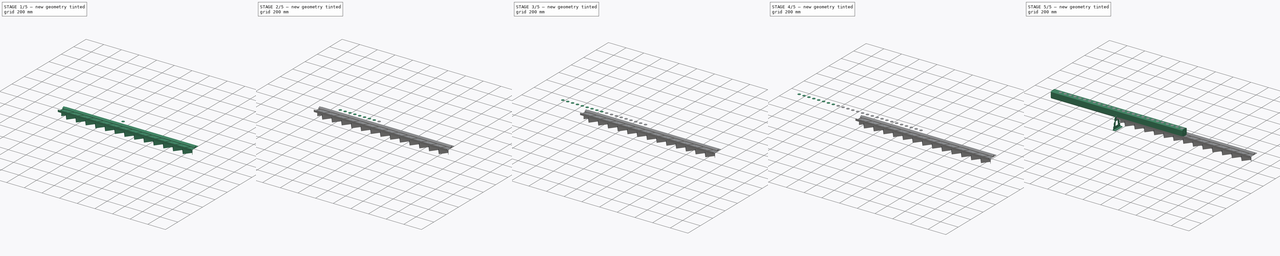
[diagram: build sequence overview — one tinted view per stage of 5, left to right]
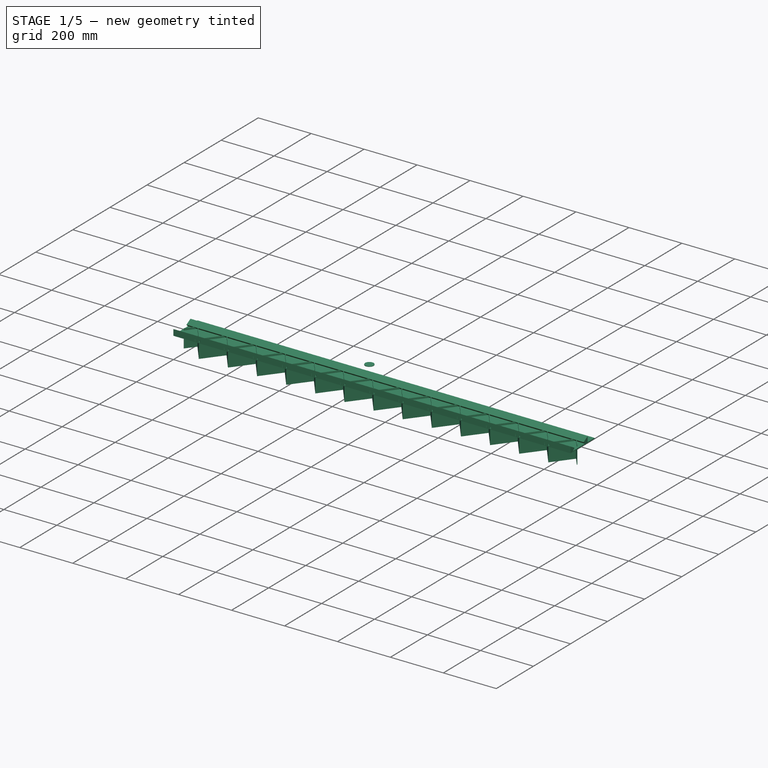
[diagram: stage 1 of 5 — iso view after this stage's code; geometry added in this stage tinted green]
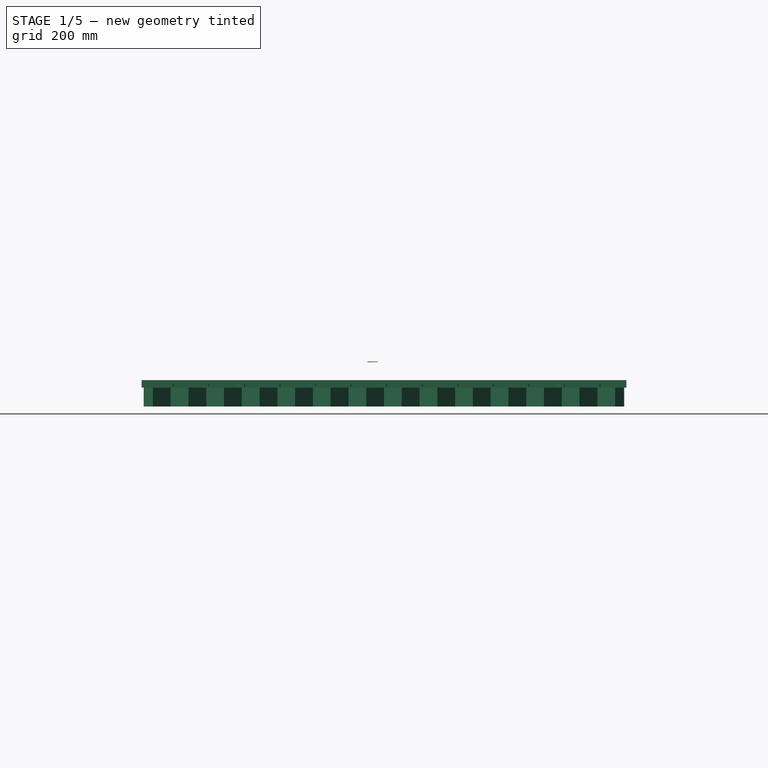
[diagram: stage 1 of 5 — front view after this stage's code; geometry added in this stage tinted green]
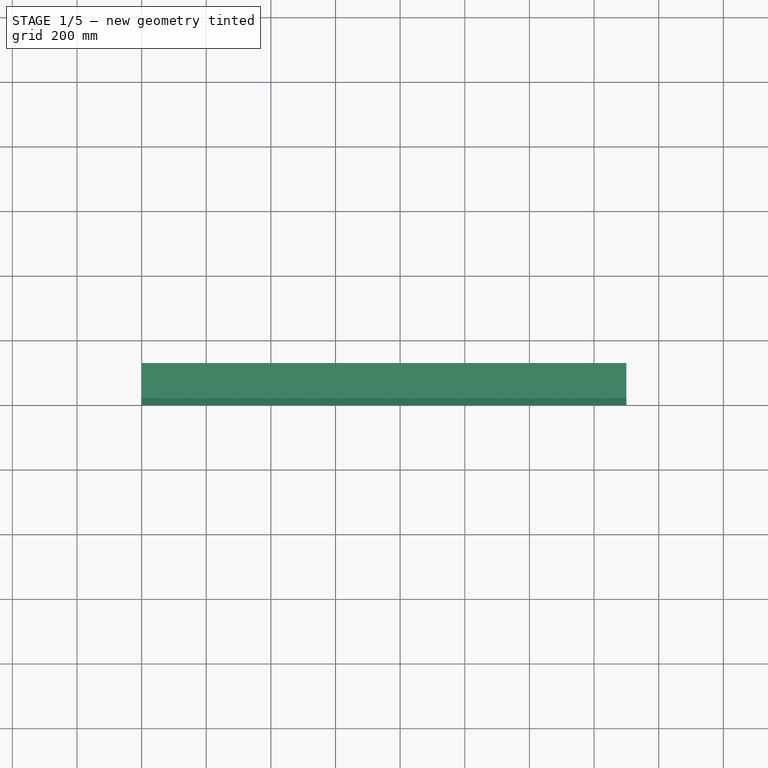
[diagram: stage 1 of 5 — top view after this stage's code; geometry added in this stage tinted green]
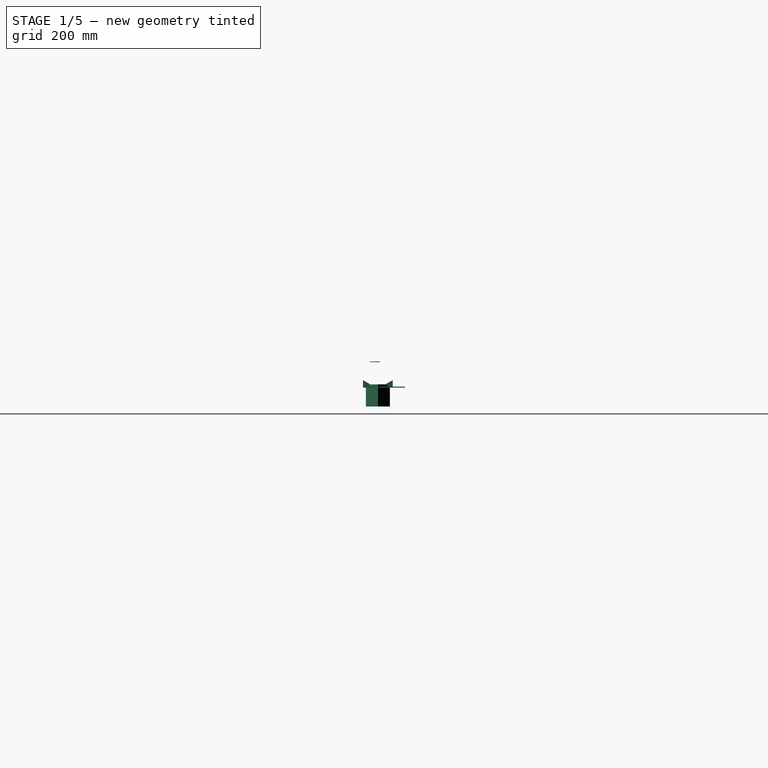
[diagram: stage 1 of 5 — right view after this stage's code; geometry added in this stage tinted green]
FCSTD DOCUMENT  (FreeCAD 1.0R39109 (Git))
Label: StairvilleTriLED
License: All rights reserved
LicenseURL: http://en.wikipedia.org/wiki/All_rights_reserved
objects: Part::Cylinder×27, Sketcher::SketchObject×13, PartDesign::Pad×8, PartDesign::Body×7, PartDesign::Pocket×5, App::Part×3, PartDesign::LinearPattern×2, PartDesign::FeatureBase×1
note: 105 computed .brp shape members not serialized (recipe doc carries the construction recipe); baked Part::Feature solids carry a one-line shape summary decoded from their .brp

FEATURE [Part::Cylinder] Cylinder026  label="Cylindre026"
  Angle = 360
  AttacherType = Attacher::AttachEngine3D
  FirstAngle = 0
  Height = 2
  Placement = pos=(715,36,78.7) rot=(0,0,1;0rad)
  Radius = 16
  SecondAngle = 0
FEATURE [Sketcher::SketchObject] Sketch008
  ArcFitTolerance = 1e-06
  AttachmentSupport = -> [YZ_Plane006]
  FullyConstrained = true
  MakeInternals = false
  MapMode = 5
  Placement = pos=(0,0,0) rot=(0.57735,0.57735,0.57735;2.0944rad)
  sketch-geometry (8):
    g0: LineSegment StartX=1.3e-15 StartY=0 StartZ=0 EndX=11 EndY=0 EndZ=0
    g1: LineSegment StartX=21 StartY=10 StartZ=0 EndX=21 EndY=11 EndZ=0
    g2: LineSegment StartX=1.3e-15 StartY=23.1244 StartZ=0 EndX=1.3e-15 EndY=0 EndZ=0
    g3: GeomPoint [constr] X=21 Y=28 Z=0
    g4: LineSegment StartX=21 StartY=11 StartZ=0 EndX=1.3e-15 EndY=23.1244 EndZ=0
    g5: ArcOfCircle [constr] CenterX=11 CenterY=10 CenterZ=0 NormalX=0 NormalY=0 NormalZ=1 AngleXU=0 Radius=10 StartAngle=4.71239 EndAngle=6.28319
    g6: GeomPoint [constr] X=21 Y=0 Z=0
    g7: LineSegment StartX=11 StartY=0 StartZ=0 EndX=21 EndY=10 EndZ=0
  constraints (19):
    c: Coincident(g2,g0)
    c: Horizontal(g0)
    c: Vertical(g1)
    c: Vertical(g2)
    c: Coincident(g0,g-1)
    c: DistanceY(g6,g3) = 28
    c: DistanceX(g2,g3) = 21
    c: PointOnObject(g3,g1)
    c: Coincident(g4,g1)
    c: Distance(g1,g3) = 17
    c: Angle(g4,g1) = 2.0944
    c: PointOnObject(g6,g1)
    c: PointOnObject(g6,g0)
    c: Tangent(g1,g5) = -1.5708
    c: Tangent(g0,g5) = -1.5708
    c: Coincident(g7,g1)
    c: Coincident(g7,g0)
    c: DistanceY(g6,g1) = 10
    c: Coincident(g4,g2)
FEATURE [PartDesign::Pad] Pad004
  Direction = (1,0,0)
  Length = 1500
  Length2 = 10
  Placement = pos=(0,0,0) rot=(1,1,1;2.0944rad)
  Profile = -> Sketch008
  ReferenceAxis = -> Sketch008 [N_Axis]
  Refine = true
  Suppressed = false
  Type = 0
FEATURE [Sketcher::SketchObject] Sketch009
  ArcFitTolerance = 1e-06
  AttachmentSupport = -> [XY_Plane006]
  FullyConstrained = true
  MakeInternals = false
  MapMode = 5
  sketch-geometry (86):
    g0: Circle [constr] CenterX=35 CenterY=46 CenterZ=0 NormalX=0 NormalY=0 NormalZ=1 AngleXU=0 Radius=16
    g1: Circle [constr] CenterX=90 CenterY=46 CenterZ=0 NormalX=0 NormalY=0 NormalZ=1 AngleXU=0 Radius=16
    g2: Circle [constr] CenterX=145 CenterY=46 CenterZ=0 NormalX=0 NormalY=0 NormalZ=1 AngleXU=0 Radius=16
    g3: Circle [constr] CenterX=200 CenterY=46 CenterZ=0 NormalX=0 NormalY=0 NormalZ=1 AngleXU=0 Radius=16
    g4: Circle [constr] CenterX=255 CenterY=46 CenterZ=0 NormalX=0 NormalY=0 NormalZ=1 AngleXU=0 Radius=16
    g5: Circle [constr] CenterX=310 CenterY=46 CenterZ=0 NormalX=0 NormalY=0 NormalZ=1 AngleXU=0 Radius=16
    g6: Circle [constr] CenterX=365 CenterY=46 CenterZ=0 NormalX=0 NormalY=0 NormalZ=1 AngleXU=0 Radius=16
    g7: Circle [constr] CenterX=420 CenterY=46 CenterZ=0 NormalX=0 NormalY=0 NormalZ=1 AngleXU=0 Radius=16
    g8: Circle [constr] CenterX=475 CenterY=46 CenterZ=0 NormalX=0 NormalY=0 NormalZ=1 AngleXU=0 Radius=16
    g9: Circle [constr] CenterX=530 CenterY=46 CenterZ=0 NormalX=0 NormalY=0 NormalZ=1 AngleXU=0 Radius=16
    g10: Circle [constr] CenterX=585 CenterY=46 CenterZ=0 NormalX=0 NormalY=0 NormalZ=1 AngleXU=0 Radius=16
    g11: Circle [constr] CenterX=640 CenterY=46 CenterZ=0 NormalX=0 NormalY=0 NormalZ=1 AngleXU=0 Radius=16
    g12: Circle [constr] CenterX=695 CenterY=46 CenterZ=0 NormalX=0 NormalY=0 NormalZ=1 AngleXU=0 Radius=16
    g13: Circle [constr] CenterX=750 CenterY=46 CenterZ=0 NormalX=0 NormalY=0 NormalZ=1 AngleXU=0 Radius=16
    g14: Circle [constr] CenterX=805 CenterY=46 CenterZ=0 NormalX=0 NormalY=0 NormalZ=1 AngleXU=0 Radius=16
    g15: Circle [constr] CenterX=860 CenterY=46 CenterZ=0 NormalX=0 NormalY=0 NormalZ=1 AngleXU=0 Radius=16
    g16: Circle [constr] CenterX=915 CenterY=46 CenterZ=0 NormalX=0 NormalY=0 NormalZ=1 AngleXU=0 Radius=16
    g17: Circle [constr] CenterX=970 CenterY=46 CenterZ=0 NormalX=0 NormalY=0 NormalZ=1 AngleXU=0 Radius=16
    g18: Circle [constr] CenterX=1025 CenterY=46 CenterZ=0 NormalX=0 NormalY=0 NormalZ=1 AngleXU=0 Radius=16
    g19: Circle [constr] CenterX=1080 CenterY=46 CenterZ=0 NormalX=0 NormalY=0 NormalZ=1 AngleXU=0 Radius=16
    g20: Circle [constr] CenterX=1135 CenterY=46 CenterZ=0 NormalX=0 NormalY=0 NormalZ=1 AngleXU=0 Radius=16
    g21: Circle [constr] CenterX=1190 CenterY=46 CenterZ=0 NormalX=0 NormalY=0 NormalZ=1 AngleXU=0 Radius=16
    g22: Circle [constr] CenterX=1245 CenterY=46 CenterZ=0 NormalX=0 NormalY=0 NormalZ=1 AngleXU=0 Radius=16
    g23: Circle [constr] CenterX=1300 CenterY=46 CenterZ=0 NormalX=0 NormalY=0 NormalZ=1 AngleXU=0 Radius=16
    g24: Circle [constr] CenterX=1355 CenterY=46 CenterZ=0 NormalX=0 NormalY=0 NormalZ=1 AngleXU=0 Radius=16
    g25: Circle [constr] CenterX=1410 CenterY=46 CenterZ=0 NormalX=0 NormalY=0 NormalZ=1 AngleXU=0 Radius=16
    g26: Circle [constr] CenterX=1465 CenterY=46 CenterZ=0 NormalX=0 NormalY=0 NormalZ=1 AngleXU=0 Radius=16
    g27: LineSegment [constr] StartX=35 StartY=46 StartZ=0 EndX=90 EndY=46 EndZ=0
    g28: LineSegment [constr] StartX=90 StartY=46 StartZ=0 EndX=145 EndY=46 EndZ=0
    g29: LineSegment [constr] StartX=145 StartY=46 StartZ=0 EndX=200 EndY=46 EndZ=0
    g30: LineSegment [constr] StartX=200 StartY=46 StartZ=0 EndX=255 EndY=46 EndZ=0
    g31: LineSegment [constr] StartX=255 StartY=46 StartZ=0 EndX=310 EndY=46 EndZ=0
    g32: LineSegment [constr] StartX=310 StartY=46 StartZ=0 EndX=365 EndY=46 EndZ=0
    g33: LineSegment [constr] StartX=365 StartY=46 StartZ=0 EndX=420 EndY=46 EndZ=0
    g34: LineSegment [constr] StartX=420 StartY=46 StartZ=0 EndX=475 EndY=46 EndZ=0
    g35: LineSegment [constr] StartX=475 StartY=46 StartZ=0 EndX=530 EndY=46 EndZ=0
    g36: LineSegment [constr] StartX=530 StartY=46 StartZ=0 EndX=585 EndY=46 EndZ=0
    g37: LineSegment [constr] StartX=585 StartY=46 StartZ=0 EndX=640 EndY=46 EndZ=0
    g38: LineSegment [constr] StartX=640 StartY=46 StartZ=0 EndX=695 EndY=46 EndZ=0
    g39: LineSegment [constr] StartX=695 StartY=46 StartZ=0 EndX=750 EndY=46 EndZ=0
    g40: LineSegment [constr] StartX=750 StartY=46 StartZ=0 EndX=805 EndY=46 EndZ=0
    g41: LineSegment [constr] StartX=805 StartY=46 StartZ=0 EndX=860 EndY=46 EndZ=0
    g42: LineSegment [constr] StartX=860 StartY=46 StartZ=0 EndX=915 EndY=46 EndZ=0
    g43: LineSegment [constr] StartX=915 StartY=46 StartZ=0 EndX=970 EndY=46 EndZ=0
    g44: LineSegment [constr] StartX=970 StartY=46 StartZ=0 EndX=1025 EndY=46 EndZ=0
    g45: LineSegment [constr] StartX=1025 StartY=46 StartZ=0 EndX=1080 EndY=46 EndZ=0
    g46: LineSegment [constr] StartX=1080 StartY=46 StartZ=0 EndX=1135 EndY=46 EndZ=0
    g47: LineSegment [constr] StartX=1135 StartY=46 StartZ=0 EndX=1190 EndY=46 EndZ=0
    g48: LineSegment [constr] StartX=1190 StartY=46 StartZ=0 EndX=1245 EndY=46 EndZ=0
    g49: LineSegment [constr] StartX=1245 StartY=46 StartZ=0 EndX=1300 EndY=46 EndZ=0
    g50: LineSegment [constr] StartX=1300 StartY=46 StartZ=0 EndX=1355 EndY=46 EndZ=0
    g51: LineSegment [constr] StartX=1355 StartY=46 StartZ=0 EndX=1410 EndY=46 EndZ=0
    g52: LineSegment [constr] StartX=1410 StartY=46 StartZ=0 EndX=1465 EndY=46 EndZ=0
    g53: LineSegment [constr] StartX=1500 StartY=81.5 StartZ=0 EndX=0 EndY=81.5 EndZ=0
    g54: LineSegment [constr] StartX=0 StartY=81.5 StartZ=0 EndX=0 EndY=10.5 EndZ=0
    g55: LineSegment [constr] StartX=0 StartY=10.5 StartZ=0 EndX=1500 EndY=10.5 EndZ=0
    g56: LineSegment [constr] StartX=1500 StartY=10.5 StartZ=0 EndX=1500 EndY=81.5 EndZ=0
    g57: LineSegment [constr] StartX=35 StartY=46 StartZ=0 EndX=35 EndY=81.5 EndZ=0
    g58: LineSegment [constr] StartX=90 StartY=46 StartZ=0 EndX=90 EndY=10.5 EndZ=0
    g59: LineSegment [constr] StartX=7.5 StartY=46 StartZ=0 EndX=35 EndY=81.5 EndZ=0
    g60: LineSegment [constr] StartX=35 StartY=81.5 StartZ=0 EndX=90 EndY=10.5 EndZ=0
    g61: LineSegment [constr] StartX=90 StartY=46 StartZ=0 EndX=117.5 EndY=46 EndZ=0
    g62: LineSegment [constr] StartX=90 StartY=10.5 StartZ=0 EndX=117.5 EndY=46 EndZ=0
    g63: LineSegment StartX=6.70945 StartY=46.6124 StartZ=0 EndX=8.29055 EndY=45.3876 EndZ=0
    g64: LineSegment StartX=8.29055 StartY=45.3876 StartZ=0 EndX=35 EndY=79.8671 EndZ=0
    g65: LineSegment StartX=35 StartY=79.8671 StartZ=0 EndX=88.7351 EndY=10.5 EndZ=0
    g66: LineSegment StartX=91.2649 StartY=10.5 StartZ=0 EndX=118.291 EndY=45.3876 EndZ=0
    g67: LineSegment StartX=118.291 StartY=45.3876 StartZ=0 EndX=116.709 EndY=46.6124 EndZ=0
    g68: LineSegment StartX=116.709 StartY=46.6124 StartZ=0 EndX=90 EndY=12.1329 EndZ=0
    g69: LineSegment StartX=90 StartY=12.1329 StartZ=0 EndX=36.2649 EndY=81.5 EndZ=0
    g70: LineSegment StartX=33.7351 StartY=81.5 StartZ=0 EndX=6.70945 EndY=46.6124 EndZ=0
    g71: LineSegment [constr] StartX=35 StartY=46 StartZ=0 EndX=7.5 EndY=46 EndZ=0
    g72: LineSegment StartX=33.7351 StartY=81.5 StartZ=0 EndX=23.0641 EndY=95.2752 EndZ=0
    g73: LineSegment StartX=23.0641 StartY=95.2752 StartZ=0 EndX=24.6452 EndY=96.5 EndZ=0
    g74: LineSegment StartX=24.6452 StartY=96.5 StartZ=0 EndX=35 EndY=83.1329 EndZ=0
    g75: LineSegment StartX=35 StartY=83.1329 StartZ=0 EndX=45.3548 EndY=96.5 EndZ=0
    g76: LineSegment StartX=45.3548 StartY=96.5 StartZ=0 EndX=46.9359 EndY=95.2752 EndZ=0
    g77: LineSegment StartX=46.9359 StartY=95.2752 StartZ=0 EndX=36.2649 EndY=81.5 EndZ=0
    g78: LineSegment StartX=90 StartY=8.86707 StartZ=0 EndX=100.355 EndY=-4.5 EndZ=0
    g79: LineSegment StartX=100.355 StartY=-4.5 StartZ=0 EndX=101.936 EndY=-3.2752 EndZ=0
    g80: LineSegment StartX=101.936 StartY=-3.2752 StartZ=0 EndX=91.2649 EndY=10.5 EndZ=0
    g81: LineSegment StartX=90 StartY=8.86707 StartZ=0 EndX=79.6452 EndY=-4.5 EndZ=0
    g82: LineSegment StartX=79.6452 StartY=-4.5 StartZ=0 EndX=78.0641 EndY=-3.2752 EndZ=0
    g83: LineSegment StartX=78.0641 StartY=-3.2752 StartZ=0 EndX=88.7351 EndY=10.5 EndZ=0
    g84: LineSegment [constr] StartX=35 StartY=79.8671 StartZ=0 EndX=36.2649 EndY=81.5 EndZ=0
    g85: LineSegment [constr] StartX=88.7351 StartY=10.5 StartZ=0 EndX=90 EndY=12.1329 EndZ=0
  constraints (220):
    c: Diameter(g0) = 32
    c: Diameter(g1) = 32
    c: Diameter(g2) = 32
    c: Diameter(g3) = 32
    c: Diameter(g4) = 32
    c: Diameter(g5) = 32
    c: Diameter(g6) = 32
    c: Diameter(g7) = 32
    c: Diameter(g8) = 32
    c: Diameter(g9) = 32
    c: Diameter(g10) = 32
    c: Diameter(g11) = 32
    c: Diameter(g12) = 32
    c: Diameter(g13) = 32
    c: Diameter(g14) = 32
    c: Diameter(g15) = 32
    c: Diameter(g16) = 32
    c: Diameter(g17) = 32
    c: Diameter(g18) = 32
    c: Diameter(g19) = 32
    c: Diameter(g20) = 32
    c: Diameter(g21) = 32
    c: Diameter(g22) = 32
    c: Diameter(g23) = 32
    c: Diameter(g24) = 32
    c: Diameter(g25) = 32
    c: Diameter(g26) = 32
    c: Coincident(g27,g0)
    c: Coincident(g27,g1)
    c: Horizontal(g27)
    c: Coincident(g28,g1)
    c: Coincident(g28,g2)
    c: Horizontal(g28)
    c: Coincident(g28,g29)
    c: Coincident(g29,g3)
    c: Horizontal(g29)
    c: Coincident(g29,g30)
    c: Coincident(g30,g4)
    c: Horizontal(g30)
    c: Coincident(g30,g31)
    c: Coincident(g31,g5)
    c: Horizontal(g31)
    c: Coincident(g31,g32)
    c: Coincident(g32,g6)
    c: Horizontal(g32)
    c: Coincident(g32,g33)
    c: Coincident(g33,g7)
    c: Horizontal(g33)
    c: Coincident(g33,g34)
    c: Coincident(g34,g8)
    c: Horizontal(g34)
    c: Coincident(g34,g35)
    c: Coincident(g35,g9)
    c: Horizontal(g35)
    c: Coincident(g35,g36)
    c: Coincident(g36,g10)
    c: Horizontal(g36)
    c: Coincident(g36,g37)
    c: Coincident(g37,g11)
    c: Horizontal(g37)
    c: Coincident(g37,g38)
    c: Coincident(g38,g12)
    c: Horizontal(g38)
    c: Coincident(g38,g39)
    c: Coincident(g39,g13)
    c: Horizontal(g39)
    c: Coincident(g39,g40)
    c: Coincident(g40,g14)
    c: Horizontal(g40)
    c: Coincident(g40,g41)
    c: Coincident(g41,g15)
    c: Horizontal(g41)
    c: Coincident(g41,g42)
    c: Coincident(g42,g16)
    c: Horizontal(g42)
    c: Coincident(g42,g43)
    c: Coincident(g43,g17)
    c: Horizontal(g43)
    c: Coincident(g43,g44)
    c: Coincident(g44,g18)
    c: Horizontal(g44)
    c: Coincident(g44,g45)
    c: Coincident(g45,g19)
    c: Horizontal(g45)
    c: Coincident(g45,g46)
    c: Coincident(g46,g20)
    c: Horizontal(g46)
    c: Coincident(g46,g47)
    c: Coincident(g47,g21)
    c: Horizontal(g47)
    c: Coincident(g47,g48)
    c: Coincident(g48,g22)
    c: Horizontal(g48)
    c: Coincident(g48,g49)
    c: Coincident(g49,g23)
    c: Horizontal(g49)
    c: Coincident(g49,g50)
    c: Coincident(g50,g24)
    c: Horizontal(g50)
    c: Coincident(g50,g51)
    c: Coincident(g51,g25)
    c: Horizontal(g51)
    c: Coincident(g51,g52)
    c: Coincident(g52,g26)
    c: Horizontal(g52)
    c: Equal(g27,g28)
    c: Equal(g28,g29)
    c: Equal(g29,g30)
    c: Equal(g30,g31)
    c: Equal(g31,g32)
    c: Equal(g32,g33)
    c: Equal(g33,g34)
    c: Equal(g34,g35)
    c: Equal(g35,g36)
    c: Equal(g36,g37)
    c: Equal(g37,g38)
    c: Equal(g38,g39)
    c: Equal(g39,g40)
    c: Equal(g40,g41)
    c: Equal(g41,g42)
    c: Equal(g42,g43)
    c: Equal(g43,g44)
    c: Equal(g44,g45)
    c: Equal(g45,g46)
    c: Equal(g46,g47)
    c: Equal(g47,g48)
    c: Equal(g48,g49)
    c: Equal(g49,g50)
    c: Equal(g50,g51)
    c: Equal(g51,g52)
    c: DistanceX(g0,g1) = 55
    c: Horizontal(g53)
    c: DistanceX(g53,g53) = 1500
    c: DistanceX(g26,g53) = 35
    c: Coincident(g53,g54)
    c: PointOnObject(g54,g-2)
    c: Vertical(g54)
    c: Coincident(g54,g55)
    c: Horizontal(g55)
    c: Coincident(g55,g56)
    c: Coincident(g56,g53)
    c: Vertical(g56)
    c: DistanceY(g56,g56) = 71
    c: Distance(g54,g-1) = 10.5
    c: DistanceY(g54,g0) = 35.5
    c: Coincident(g57,g0)
    c: PointOnObject(g57,g53)
    c: Vertical(g57)
    c: Coincident(g58,g1)
    c: PointOnObject(g58,g55)
    c: Vertical(g58)
    c: Coincident(g59,g57)
    c: Coincident(g60,g57)
    c: Coincident(g60,g58)
    c: Coincident(g61,g1)
    c: Symmetric(g28,g28,g61)
    c: Coincident(g62,g58)
    c: Coincident(g62,g61)
    c: Coincident(g64,g63)
    c: PointOnObject(g64,g57)
    c: Coincident(g65,g64)
    c: Coincident(g67,g66)
    c: Coincident(g68,g67)
    c: Coincident(g69,g68)
    c: Coincident(g70,g63)
    c: Distance(g64,g70) = 2
    c: Distance(g64,g69) = 2
    c: Distance(g68,g66) = 2
    c: Parallel(g65,g69)
    c: Parallel(g66,g68)
    c: Parallel(g64,g70)
    c: Symmetric(g66,g67,g61)
    c: Coincident(g71,g0)
    c: Horizontal(g71)
    c: DistanceX(g71,g71) = 27.5
    c: Coincident(g59,g71)
    c: Perpendicular(g67,g66)
    c: Perpendicular(g63,g64)
    c: Coincident(g73,g72)
    c: Coincident(g74,g73)
    c: Coincident(g75,g74)
    c: Coincident(g76,g75)
    c: Coincident(g77,g76)
    c: Parallel(g75,g77)
    c: Parallel(g75,g70)
    c: Perpendicular(g76,g77)
    c: Parallel(g74,g72)
    c: Parallel(g72,g65)
    c: Perpendicular(g74,g73)
    c: Distance(g73,g53) = 15
    c: Horizontal(g75,g73)
    c: Coincident(g77,g69)
    c: PointOnObject(g72,g53)
    c: Coincident(g79,g78)
    c: Coincident(g80,g79)
    c: Coincident(g81,g78)
    c: Coincident(g82,g81)
    c: Coincident(g83,g82)
    c: Parallel(g81,g83)
    c: Parallel(g83,g66)
    c: Parallel(g78,g80)
    c: Parallel(g80,g69)
    c: Perpendicular(g83,g82)
    c: Perpendicular(g80,g79)
    c: Distance(g78,g55) = 15
    c: Horizontal(g78,g81)
    c: Coincident(g70,g72)
    c: Symmetric(g64,g74,g57)
    c: Symmetric(g69,g70,g57)
    c: Symmetric(g63,g63,g59)
    c: Coincident(g84,g64)
    c: Coincident(g84,g69)
    c: Parallel(g84,g77)
    c: Coincident(g80,g66)
    c: Coincident(g83,g65)
    c: Symmetric(g78,g68,g58)
    c: Symmetric(g66,g65,g58)
    c: Coincident(g85,g65)
    c: Coincident(g85,g68)
    c: Parallel(g85,g83)
FEATURE [Sketcher::SketchObject] Sketch010
  ArcFitTolerance = 1e-06
  AttachmentSupport = -> [XY_Plane005]
  FullyConstrained = false
  MakeInternals = false
  MapMode = 5
  sketch-geometry (150):
    g0: Circle [constr] CenterX=35 CenterY=46 CenterZ=0 NormalX=0 NormalY=0 NormalZ=1 AngleXU=0 Radius=16
    g1: Circle [constr] CenterX=90 CenterY=46 CenterZ=0 NormalX=0 NormalY=0 NormalZ=1 AngleXU=0 Radius=16
    g2: Circle [constr] CenterX=145 CenterY=46 CenterZ=0 NormalX=0 NormalY=0 NormalZ=1 AngleXU=0 Radius=16
    g3: Circle [constr] CenterX=200 CenterY=46 CenterZ=0 NormalX=0 NormalY=0 NormalZ=1 AngleXU=0 Radius=16
    g4: Circle [constr] CenterX=255 CenterY=46 CenterZ=0 NormalX=0 NormalY=0 NormalZ=1 AngleXU=0 Radius=16
    g5: Circle [constr] CenterX=310 CenterY=46 CenterZ=0 NormalX=0 NormalY=0 NormalZ=1 AngleXU=0 Radius=16
    g6: Circle [constr] CenterX=365 CenterY=46 CenterZ=0 NormalX=0 NormalY=0 NormalZ=1 AngleXU=0 Radius=16
    g7: Circle [constr] CenterX=420 CenterY=46 CenterZ=0 NormalX=0 NormalY=0 NormalZ=1 AngleXU=0 Radius=16
    g8: Circle [constr] CenterX=475 CenterY=46 CenterZ=0 NormalX=0 NormalY=0 NormalZ=1 AngleXU=0 Radius=16
    g9: Circle [constr] CenterX=530 CenterY=46 CenterZ=0 NormalX=0 NormalY=0 NormalZ=1 AngleXU=0 Radius=16
    g10: Circle [constr] CenterX=585 CenterY=46 CenterZ=0 NormalX=0 NormalY=0 NormalZ=1 AngleXU=0 Radius=16
    g11: Circle [constr] CenterX=640 CenterY=46 CenterZ=0 NormalX=0 NormalY=0 NormalZ=1 AngleXU=0 Radius=16
    g12: Circle [constr] CenterX=695 CenterY=46 CenterZ=0 NormalX=0 NormalY=0 NormalZ=1 AngleXU=0 Radius=16
    g13: Circle [constr] CenterX=750 CenterY=46 CenterZ=0 NormalX=0 NormalY=0 NormalZ=1 AngleXU=0 Radius=16
    g14: Circle [constr] CenterX=805 CenterY=46 CenterZ=0 NormalX=0 NormalY=0 NormalZ=1 AngleXU=0 Radius=16
    g15: Circle [constr] CenterX=860 CenterY=46 CenterZ=0 NormalX=0 NormalY=0 NormalZ=1 AngleXU=0 Radius=16
    g16: Circle [constr] CenterX=915 CenterY=46 CenterZ=0 NormalX=0 NormalY=0 NormalZ=1 AngleXU=0 Radius=16
    g17: Circle [constr] CenterX=970 CenterY=46 CenterZ=0 NormalX=0 NormalY=0 NormalZ=1 AngleXU=0 Radius=16
    g18: Circle [constr] CenterX=1025 CenterY=46 CenterZ=0 NormalX=0 NormalY=0 NormalZ=1 AngleXU=0 Radius=16
    g19: Circle [constr] CenterX=1080 CenterY=46 CenterZ=0 NormalX=0 NormalY=0 NormalZ=1 AngleXU=0 Radius=16
    g20: Circle [constr] CenterX=1135 CenterY=46 CenterZ=0 NormalX=0 NormalY=0 NormalZ=1 AngleXU=0 Radius=16
    g21: Circle [constr] CenterX=1190 CenterY=46 CenterZ=0 NormalX=0 NormalY=0 NormalZ=1 AngleXU=0 Radius=16
    g22: Circle [constr] CenterX=1245 CenterY=46 CenterZ=0 NormalX=0 NormalY=0 NormalZ=1 AngleXU=0 Radius=16
    g23: Circle [constr] CenterX=1300 CenterY=46 CenterZ=0 NormalX=0 NormalY=0 NormalZ=1 AngleXU=0 Radius=16
    g24: Circle [constr] CenterX=1355 CenterY=46 CenterZ=0 NormalX=0 NormalY=0 NormalZ=1 AngleXU=0 Radius=16
    g25: Circle [constr] CenterX=1410 CenterY=46 CenterZ=0 NormalX=0 NormalY=0 NormalZ=1 AngleXU=0 Radius=16
    g26: Circle [constr] CenterX=1465 CenterY=46 CenterZ=0 NormalX=0 NormalY=0 NormalZ=1 AngleXU=0 Radius=16
    g27: LineSegment [constr] StartX=35 StartY=46 StartZ=0 EndX=90 EndY=46 EndZ=0
    g28: LineSegment [constr] StartX=90 StartY=46 StartZ=0 EndX=145 EndY=46 EndZ=0
    g29: LineSegment [constr] StartX=145 StartY=46 StartZ=0 EndX=200 EndY=46 EndZ=0
    g30: LineSegment [constr] StartX=200 StartY=46 StartZ=0 EndX=255 EndY=46 EndZ=0
    g31: LineSegment [constr] StartX=255 StartY=46 StartZ=0 EndX=310 EndY=46 EndZ=0
    g32: LineSegment [constr] StartX=310 StartY=46 StartZ=0 EndX=365 EndY=46 EndZ=0
    g33: LineSegment [constr] StartX=365 StartY=46 StartZ=0 EndX=420 EndY=46 EndZ=0
    g34: LineSegment [constr] StartX=420 StartY=46 StartZ=0 EndX=475 EndY=46 EndZ=0
    g35: LineSegment [constr] StartX=475 StartY=46 StartZ=0 EndX=530 EndY=46 EndZ=0
    g36: LineSegment [constr] StartX=530 StartY=46 StartZ=0 EndX=585 EndY=46 EndZ=0
    g37: LineSegment [constr] StartX=585 StartY=46 StartZ=0 EndX=640 EndY=46 EndZ=0
    g38: LineSegment [constr] StartX=640 StartY=46 StartZ=0 EndX=695 EndY=46 EndZ=0
    g39: LineSegment [constr] StartX=695 StartY=46 StartZ=0 EndX=750 EndY=46 EndZ=0
    g40: LineSegment [constr] StartX=750 StartY=46 StartZ=0 EndX=805 EndY=46 EndZ=0
    g41: LineSegment [constr] StartX=805 StartY=46 StartZ=0 EndX=860 EndY=46 EndZ=0
    g42: LineSegment [constr] StartX=860 StartY=46 StartZ=0 EndX=915 EndY=46 EndZ=0
    g43: LineSegment [constr] StartX=915 StartY=46 StartZ=0 EndX=970 EndY=46 EndZ=0
    g44: LineSegment [constr] StartX=970 StartY=46 StartZ=0 EndX=1025 EndY=46 EndZ=0
    g45: LineSegment [constr] StartX=1025 StartY=46 StartZ=0 EndX=1080 EndY=46 EndZ=0
    g46: LineSegment [constr] StartX=1080 StartY=46 StartZ=0 EndX=1135 EndY=46 EndZ=0
    g47: LineSegment [constr] StartX=1135 StartY=46 StartZ=0 EndX=1190 EndY=46 EndZ=0
    g48: LineSegment [constr] StartX=1190 StartY=46 StartZ=0 EndX=1245 EndY=46 EndZ=0
    g49: LineSegment [constr] StartX=1245 StartY=46 StartZ=0 EndX=1300 EndY=46 EndZ=0
    g50: LineSegment [constr] StartX=1300 StartY=46 StartZ=0 EndX=1355 EndY=46 EndZ=0
    g51: LineSegment [constr] StartX=1355 StartY=46 StartZ=0 EndX=1410 EndY=46 EndZ=0
    g52: LineSegment [constr] StartX=1410 StartY=46 StartZ=0 EndX=1465 EndY=46 EndZ=0
    g53: LineSegment [constr] StartX=1500 StartY=81.5 StartZ=0 EndX=0 EndY=81.5 EndZ=0
    g54: LineSegment [constr] StartX=0 StartY=81.5 StartZ=0 EndX=0 EndY=10.5 EndZ=0
    g55: LineSegment [constr] StartX=0 StartY=10.5 StartZ=0 EndX=1500 EndY=10.5 EndZ=0
    g56: LineSegment [constr] StartX=1500 StartY=10.5 StartZ=0 EndX=1500 EndY=81.5 EndZ=0
    g57: LineSegment [constr] StartX=35 StartY=46 StartZ=0 EndX=35 EndY=81.5 EndZ=0
    g58: LineSegment [constr] StartX=90 StartY=46 StartZ=0 EndX=90 EndY=10.5 EndZ=0
    g59: LineSegment [constr] StartX=7.5 StartY=46 StartZ=0 EndX=35 EndY=81.5 EndZ=0
    g60: LineSegment [constr] StartX=35 StartY=81.5 StartZ=0 EndX=90 EndY=10.5 EndZ=0
    g61: LineSegment [constr] StartX=90 StartY=46 StartZ=0 EndX=117.5 EndY=46 EndZ=0
    g62: LineSegment StartX=6.70945 StartY=46.6124 StartZ=0 EndX=8.29055 EndY=45.3876 EndZ=0
    g63: LineSegment StartX=8.29055 StartY=45.3876 StartZ=0 EndX=35 EndY=79.8671 EndZ=0
    g64: LineSegment StartX=35 StartY=79.8671 StartZ=0 EndX=90 EndY=8.86707 EndZ=0
    g65: LineSegment StartX=90 StartY=12.1329 StartZ=0 EndX=35 EndY=83.1329 EndZ=0
    g66: LineSegment StartX=35 StartY=83.1329 StartZ=0 EndX=6.70945 EndY=46.6124 EndZ=0
    g67: LineSegment [constr] StartX=35 StartY=46 StartZ=0 EndX=7.5 EndY=46 EndZ=0
    g68: LineSegment StartX=90 StartY=12.1329 StartZ=0 EndX=116.709 EndY=46.6124 EndZ=0
    g69: LineSegment [constr] StartX=116.709 StartY=46.6124 StartZ=0 EndX=118.291 EndY=45.3876 EndZ=0
    g70: LineSegment StartX=118.291 StartY=45.3876 StartZ=0 EndX=90 EndY=8.86707 EndZ=0
    g71: LineSegment StartX=200 StartY=12.1329 StartZ=0 EndX=226.709 EndY=46.6124 EndZ=0
    g72: LineSegment StartX=228.291 StartY=45.3876 StartZ=0 EndX=200 EndY=8.86709 EndZ=0
    g73: LineSegment StartX=145.002 StartY=79.8707 StartZ=0 EndX=200 EndY=8.86709 EndZ=0
    g74: LineSegment StartX=200 StartY=12.1329 StartZ=0 EndX=145.002 EndY=83.1367 EndZ=0
    g75: LineSegment StartX=145.002 StartY=83.1367 StartZ=0 EndX=116.709 EndY=46.6124 EndZ=0
    g76: LineSegment StartX=118.291 StartY=45.3876 StartZ=0 EndX=145.002 EndY=79.8707 EndZ=0
    g77: LineSegment StartX=310 StartY=12.1329 StartZ=0 EndX=336.709 EndY=46.6124 EndZ=0
    g78: LineSegment StartX=338.291 StartY=45.3876 StartZ=0 EndX=310 EndY=8.86707 EndZ=0
    g79: LineSegment StartX=255 StartY=79.8671 StartZ=0 EndX=310 EndY=8.86707 EndZ=0
    g80: LineSegment StartX=310 StartY=12.1329 StartZ=0 EndX=255 EndY=83.1329 EndZ=0
    g81: LineSegment StartX=255 StartY=83.1329 StartZ=0 EndX=226.709 EndY=46.6124 EndZ=0
    g82: LineSegment StartX=228.291 StartY=45.3876 StartZ=0 EndX=255 EndY=79.8671 EndZ=0
    g83: LineSegment StartX=420 StartY=12.1329 StartZ=0 EndX=446.709 EndY=46.6124 EndZ=0
    g84: LineSegment StartX=448.291 StartY=45.3876 StartZ=0 EndX=420 EndY=8.86707 EndZ=0
    g85: LineSegment StartX=365 StartY=79.8671 StartZ=0 EndX=420 EndY=8.86707 EndZ=0
    g86: LineSegment StartX=420 StartY=12.1329 StartZ=0 EndX=365 EndY=83.1329 EndZ=0
    g87: LineSegment StartX=365 StartY=83.1329 StartZ=0 EndX=336.709 EndY=46.6124 EndZ=0
    g88: LineSegment StartX=338.291 StartY=45.3876 StartZ=0 EndX=365 EndY=79.8671 EndZ=0
    g89: LineSegment StartX=530 StartY=12.1329 StartZ=0 EndX=556.709 EndY=46.6124 EndZ=0
    g90: LineSegment StartX=558.291 StartY=45.3876 StartZ=0 EndX=530 EndY=8.86707 EndZ=0
    g91: LineSegment StartX=475 StartY=79.8671 StartZ=0 EndX=530 EndY=8.86707 EndZ=0
    g92: LineSegment StartX=530 StartY=12.1329 StartZ=0 EndX=475 EndY=83.1329 EndZ=0
    g93: LineSegment StartX=475 StartY=83.1329 StartZ=0 EndX=446.709 EndY=46.6124 EndZ=0
    g94: LineSegment StartX=448.291 StartY=45.3876 StartZ=0 EndX=475 EndY=79.8671 EndZ=0
    g95: LineSegment StartX=640 StartY=12.1329 StartZ=0 EndX=666.709 EndY=46.6124 EndZ=0
    g96: LineSegment StartX=668.291 StartY=45.3876 StartZ=0 EndX=640 EndY=8.86707 EndZ=0
    g97: LineSegment StartX=585 StartY=79.8671 StartZ=0 EndX=640 EndY=8.86707 EndZ=0
    g98: LineSegment StartX=640 StartY=12.1329 StartZ=0 EndX=585 EndY=83.1329 EndZ=0
    g99: LineSegment StartX=585 StartY=83.1329 StartZ=0 EndX=556.709 EndY=46.6124 EndZ=0
    g100: LineSegment StartX=558.291 StartY=45.3876 StartZ=0 EndX=585 EndY=79.8671 EndZ=0
    g101: LineSegment StartX=750 StartY=12.1329 StartZ=0 EndX=776.709 EndY=46.6124 EndZ=0
    g102: LineSegment StartX=778.291 StartY=45.3876 StartZ=0 EndX=750 EndY=8.86707 EndZ=0
    g103: LineSegment StartX=695 StartY=79.8671 StartZ=0 EndX=750 EndY=8.86707 EndZ=0
    g104: LineSegment StartX=750 StartY=12.1329 StartZ=0 EndX=695 EndY=83.1329 EndZ=0
    g105: LineSegment StartX=695 StartY=83.1329 StartZ=0 EndX=666.709 EndY=46.6124 EndZ=0
    g106: LineSegment StartX=668.291 StartY=45.3876 StartZ=0 EndX=695 EndY=79.8671 EndZ=0
    g107: LineSegment StartX=860 StartY=12.1329 StartZ=0 EndX=886.709 EndY=46.6124 EndZ=0
    g108: LineSegment StartX=888.291 StartY=45.3876 StartZ=0 EndX=860 EndY=8.86707 EndZ=0
    g109: LineSegment StartX=805 StartY=79.8671 StartZ=0 EndX=860 EndY=8.86707 EndZ=0
    g110: LineSegment StartX=860 StartY=12.1329 StartZ=0 EndX=805 EndY=83.1329 EndZ=0
    g111: LineSegment StartX=805 StartY=83.1329 StartZ=0 EndX=776.709 EndY=46.6124 EndZ=0
    g112: LineSegment StartX=778.291 StartY=45.3876 StartZ=0 EndX=805 EndY=79.8671 EndZ=0
    g113: LineSegment StartX=970 StartY=12.1329 StartZ=0 EndX=996.709 EndY=46.6124 EndZ=0
    g114: LineSegment StartX=998.291 StartY=45.3876 StartZ=0 EndX=970 EndY=8.86707 EndZ=0
    g115: LineSegment StartX=915 StartY=79.8671 StartZ=0 EndX=970 EndY=8.86707 EndZ=0
    g116: LineSegment StartX=970 StartY=12.1329 StartZ=0 EndX=915 EndY=83.1329 EndZ=0
    g117: LineSegment StartX=915 StartY=83.1329 StartZ=0 EndX=886.709 EndY=46.6124 EndZ=0
    g118: LineSegment StartX=888.291 StartY=45.3876 StartZ=0 EndX=915 EndY=79.8671 EndZ=0
    g119: LineSegment StartX=1080 StartY=12.1329 StartZ=0 EndX=1106.71 EndY=46.6124 EndZ=0
    g120: LineSegment StartX=1108.29 StartY=45.3876 StartZ=0 EndX=1080 EndY=8.86707 EndZ=0
    g121: LineSegment StartX=1025 StartY=79.8671 StartZ=0 EndX=1080 EndY=8.86707 EndZ=0
    g122: LineSegment StartX=1080 StartY=12.1329 StartZ=0 EndX=1025 EndY=83.1329 EndZ=0
    g123: LineSegment StartX=1025 StartY=83.1329 StartZ=0 EndX=996.709 EndY=46.6124 EndZ=0
    g124: LineSegment StartX=998.291 StartY=45.3876 StartZ=0 EndX=1025 EndY=79.8671 EndZ=0
    g125: LineSegment StartX=1190 StartY=12.1329 StartZ=0 EndX=1216.71 EndY=46.6124 EndZ=0
    g126: LineSegment StartX=1218.29 StartY=45.3876 StartZ=0 EndX=1190 EndY=8.86707 EndZ=0
    g127: LineSegment StartX=1135 StartY=79.8671 StartZ=0 EndX=1190 EndY=8.86707 EndZ=0
    g128: LineSegment StartX=1190 StartY=12.1329 StartZ=0 EndX=1135 EndY=83.1329 EndZ=0
    g129: LineSegment StartX=1135 StartY=83.1329 StartZ=0 EndX=1106.71 EndY=46.6124 EndZ=0
    g130: LineSegment StartX=1108.29 StartY=45.3876 StartZ=0 EndX=1135 EndY=79.8671 EndZ=0
    g131: LineSegment StartX=1300 StartY=12.1329 StartZ=0 EndX=1326.71 EndY=46.6124 EndZ=0
    g132: LineSegment StartX=1328.29 StartY=45.3876 StartZ=0 EndX=1300 EndY=8.86707 EndZ=0
    g133: LineSegment StartX=1245 StartY=79.8671 StartZ=0 EndX=1300 EndY=8.86707 EndZ=0
    g134: LineSegment StartX=1300 StartY=12.1329 StartZ=0 EndX=1245 EndY=83.1329 EndZ=0
    g135: LineSegment StartX=1245 StartY=83.1329 StartZ=0 EndX=1216.71 EndY=46.6124 EndZ=0
    g136: LineSegment StartX=1218.29 StartY=45.3876 StartZ=0 EndX=1245 EndY=79.8671 EndZ=0
    g137: LineSegment StartX=1410 StartY=12.1329 StartZ=0 EndX=1440.08 EndY=50.9692 EndZ=0
    g138: LineSegment StartX=1441.59 StartY=49.6419 StartZ=0 EndX=1410 EndY=8.86707 EndZ=0
    g139: LineSegment StartX=1355 StartY=79.8671 StartZ=0 EndX=1410 EndY=8.86707 EndZ=0
    g140: LineSegment StartX=1410 StartY=12.1329 StartZ=0 EndX=1355 EndY=83.1329 EndZ=0
    g141: LineSegment StartX=1355 StartY=83.1329 StartZ=0 EndX=1326.71 EndY=46.6124 EndZ=0
    g142: LineSegment StartX=1328.29 StartY=45.3876 StartZ=0 EndX=1355 EndY=79.8671 EndZ=0
    g143: LineSegment StartX=1465 StartY=79.8671 StartZ=0 EndX=1491.71 EndY=45.3876 EndZ=0
    g144: LineSegment StartX=1493.29 StartY=46.6124 StartZ=0 EndX=1465 EndY=83.1329 EndZ=0
    g145: LineSegment StartX=1465 StartY=83.1329 StartZ=0 EndX=1440.08 EndY=50.9692 EndZ=0
    g146: LineSegment StartX=1441.59 StartY=49.6419 StartZ=0 EndX=1465 EndY=79.8671 EndZ=0
    g147: LineSegment [constr] StartX=1465 StartY=46 StartZ=0 EndX=1492.5 EndY=46 EndZ=0
    g148: LineSegment [constr] StartX=1465 StartY=46 StartZ=0 EndX=1465 EndY=81.5 EndZ=0
    g149: LineSegment StartX=1491.71 StartY=45.3876 StartZ=0 EndX=1493.29 EndY=46.6124 EndZ=0
  constraints (320):
    c: Diameter(g0) = 32
    c: Diameter(g1) = 32
    c: Diameter(g2) = 32
    c: Diameter(g3) = 32
    c: Diameter(g4) = 32
    c: Diameter(g5) = 32
    c: Diameter(g6) = 32
    c: Diameter(g7) = 32
    c: Diameter(g8) = 32
    c: Diameter(g9) = 32
    c: Diameter(g10) = 32
    c: Diameter(g11) = 32
    c: Diameter(g12) = 32
    c: Diameter(g13) = 32
    c: Diameter(g14) = 32
    c: Diameter(g15) = 32
    c: Diameter(g16) = 32
    c: Diameter(g17) = 32
    c: Diameter(g18) = 32
    c: Diameter(g19) = 32
    c: Diameter(g20) = 32
    c: Diameter(g21) = 32
    c: Diameter(g22) = 32
    c: Diameter(g23) = 32
    c: Diameter(g24) = 32
    c: Diameter(g25) = 32
    c: Diameter(g26) = 32
    c: Coincident(g27,g0)
    c: Coincident(g27,g1)
    c: Horizontal(g27)
    c: Coincident(g28,g1)
    c: Coincident(g28,g2)
    c: Horizontal(g28)
    c: Coincident(g28,g29)
    c: Coincident(g29,g3)
    c: Horizontal(g29)
    c: Coincident(g29,g30)
    c: Coincident(g30,g4)
    c: Horizontal(g30)
    c: Coincident(g30,g31)
    c: Coincident(g31,g5)
    c: Horizontal(g31)
    c: Coincident(g31,g32)
    c: Coincident(g32,g6)
    c: Horizontal(g32)
    c: Coincident(g32,g33)
    c: Coincident(g33,g7)
    c: Horizontal(g33)
    c: Coincident(g33,g34)
    c: Coincident(g34,g8)
    c: Horizontal(g34)
    c: Coincident(g34,g35)
    c: Coincident(g35,g9)
    c: Horizontal(g35)
    c: Coincident(g35,g36)
    c: Coincident(g36,g10)
    c: Horizontal(g36)
    c: Coincident(g36,g37)
    c: Coincident(g37,g11)
    c: Horizontal(g37)
    c: Coincident(g37,g38)
    c: Coincident(g38,g12)
    c: Horizontal(g38)
    c: Coincident(g38,g39)
    c: Coincident(g39,g13)
    c: Horizontal(g39)
    c: Coincident(g39,g40)
    c: Coincident(g40,g14)
    c: Horizontal(g40)
    c: Coincident(g40,g41)
    c: Coincident(g41,g15)
    c: Horizontal(g41)
    c: Coincident(g41,g42)
    c: Coincident(g42,g16)
    c: Horizontal(g42)
    c: Coincident(g42,g43)
    c: Coincident(g43,g17)
    c: Horizontal(g43)
    c: Coincident(g43,g44)
    c: Coincident(g44,g18)
    c: Horizontal(g44)
    c: Coincident(g44,g45)
    c: Coincident(g45,g19)
    c: Horizontal(g45)
    c: Coincident(g45,g46)
    c: Coincident(g46,g20)
    c: Horizontal(g46)
    c: Coincident(g46,g47)
    c: Coincident(g47,g21)
    c: Horizontal(g47)
    c: Coincident(g47,g48)
    c: Coincident(g48,g22)
    c: Horizontal(g48)
    c: Coincident(g48,g49)
    c: Coincident(g49,g23)
    c: Horizontal(g49)
    c: Coincident(g49,g50)
    c: Coincident(g50,g24)
    c: Horizontal(g50)
    c: Coincident(g50,g51)
    c: Coincident(g51,g25)
    c: Horizontal(g51)
    c: Coincident(g51,g52)
    c: Coincident(g52,g26)
    c: Horizontal(g52)
    c: Equal(g27,g28)
    c: Equal(g28,g29)
    c: Equal(g29,g30)
    c: Equal(g30,g31)
    c: Equal(g31,g32)
    c: Equal(g32,g33)
    c: Equal(g33,g34)
    c: Equal(g34,g35)
    c: Equal(g35,g36)
    c: Equal(g36,g37)
    c: Equal(g37,g38)
    c: Equal(g38,g39)
    c: Equal(g39,g40)
    c: Equal(g40,g41)
    c: Equal(g41,g42)
    c: Equal(g42,g43)
    c: Equal(g43,g44)
    c: Equal(g44,g45)
    c: Equal(g45,g46)
    c: Equal(g46,g47)
    c: Equal(g47,g48)
    c: Equal(g48,g49)
    c: Equal(g49,g50)
    c: Equal(g50,g51)
    c: Equal(g51,g52)
    c: DistanceX(g0,g1) = 55
    c: Horizontal(g53)
    c: DistanceX(g53,g53) = 1500
    c: DistanceX(g26,g53) = 35
    c: Coincident(g53,g54)
    c: PointOnObject(g54,g-2)
    c: Vertical(g54)
    c: Coincident(g54,g55)
    c: Horizontal(g55)
    c: Coincident(g55,g56)
    c: Coincident(g56,g53)
    c: Vertical(g56)
    c: DistanceY(g56,g56) = 71
    c: Distance(g54,g-1) = 10.5
    c: DistanceY(g54,g0) = 35.5
    c: Coincident(g57,g0)
    c: PointOnObject(g57,g53)
    c: Vertical(g57)
    c: Coincident(g58,g1)
    c: PointOnObject(g58,g55)
    c: Vertical(g58)
    c: Coincident(g59,g57)
    c: Coincident(g60,g57)
    c: Coincident(g60,g58)
    c: Coincident(g61,g1)
    c: Symmetric(g28,g28,g61)
    c: Coincident(g63,g62)
    c: PointOnObject(g63,g57)
    c: Coincident(g64,g63)
    c: PointOnObject(g65,g58)
    c: Coincident(g66,g65)
    c: Coincident(g66,g62)
    c: Distance(g63,g66) = 2
    c: Distance(g63,g65) = 2
    c: Parallel(g64,g65)
    c: Parallel(g63,g66)
    c: Coincident(g67,g0)
    c: Horizontal(g67)
    c: DistanceX(g67,g67) = 27.5
    c: Coincident(g59,g67)
    c: PointOnObject(g59,g62)
    c: Symmetric(g65,g63,g57)
    c: Perpendicular(g62,g63)
    c: Symmetric(g64,g65,g58)
    c: Coincident(g68,g65)
    c: Coincident(g69,g68)
    c: Coincident(g70,g69)
    c: Coincident(g70,g64)
    c: Symmetric(g69,g68,g61)
    c: Perpendicular(g70,g69)
    c: Distance(g69,g69) = 2
    c: Coincident(g73,g76)
    c: Coincident(g79,g82)
    c: Coincident(g85,g88)
    c: Coincident(g91,g94)
    c: Coincident(g97,g100)
    c: Coincident(g103,g106)
    c: Coincident(g109,g112)
    c: Coincident(g115,g118)
    c: Coincident(g121,g124)
    c: Coincident(g127,g130)
    c: Coincident(g133,g136)
    c: Coincident(g139,g142)
    c: Coincident(g143,g146)
    c: Coincident(g75,g74)
    c: Coincident(g81,g80)
    c: Coincident(g87,g86)
    c: Coincident(g93,g92)
    c: Coincident(g99,g98)
    c: Coincident(g105,g104)
    c: Coincident(g111,g110)
    c: Coincident(g117,g116)
    c: Coincident(g123,g122)
    c: Coincident(g129,g128)
    c: Coincident(g135,g134)
    c: Coincident(g141,g140)
    c: Coincident(g145,g144)
    c: Distance(g76,g75) = 2
    c: Distance(g82,g81) = 2
    c: Distance(g88,g87) = 2
    c: Distance(g94,g93) = 2
    c: Distance(g100,g99) = 2
    c: Distance(g106,g105) = 2
    c: Distance(g112,g111) = 2
    c: Distance(g118,g117) = 2
    c: Distance(g124,g123) = 2
    c: Distance(g130,g129) = 2
    c: Distance(g136,g135) = 2
    c: Distance(g142,g141) = 2
    c: Distance(g146,g145) = 2
    c: Distance(g76,g74) = 2
    c: Distance(g82,g80) = 2
    c: Distance(g88,g86) = 2
    c: Distance(g94,g92) = 2
    c: Distance(g100,g98) = 2
    c: Distance(g106,g104) = 2
    c: Distance(g112,g110) = 2
    c: Distance(g118,g116) = 2
    c: Distance(g124,g122) = 2
    c: Distance(g130,g128) = 2
    c: Distance(g136,g134) = 2
    c: Distance(g142,g140) = 2
    c: Distance(g146,g144) = 2
    c: Parallel(g73,g74)
    c: Parallel(g79,g80)
    c: Parallel(g85,g86)
    c: Parallel(g91,g92)
    c: Parallel(g97,g98)
    c: Parallel(g103,g104)
    c: Parallel(g109,g110)
    c: Parallel(g115,g116)
    c: Parallel(g121,g122)
    c: Parallel(g127,g128)
    c: Parallel(g133,g134)
    c: Parallel(g139,g140)
    c: Parallel(g143,g144)
    c: Parallel(g76,g75)
    c: Parallel(g82,g81)
    c: Parallel(g88,g87)
    c: Parallel(g94,g93)
    c: Parallel(g100,g99)
    c: Parallel(g106,g105)
    c: Parallel(g112,g111)
    c: Parallel(g118,g117)
    c: Parallel(g124,g123)
    c: Parallel(g130,g129)
    c: Parallel(g136,g135)
    c: Parallel(g142,g141)
    c: Parallel(g146,g145)
    c: Coincident(g71,g74)
    c: Coincident(g77,g80)
    c: Coincident(g83,g86)
    c: Coincident(g89,g92)
    c: Coincident(g95,g98)
    c: Coincident(g101,g104)
    c: Coincident(g107,g110)
    c: Coincident(g113,g116)
    c: Coincident(g119,g122)
    c: Coincident(g125,g128)
    c: Coincident(g131,g134)
    c: Coincident(g137,g140)
    c: Coincident(g72,g73)
    c: Coincident(g78,g79)
    c: Coincident(g84,g85)
    c: Coincident(g90,g91)
    c: Coincident(g96,g97)
    c: Coincident(g102,g103)
    c: Coincident(g108,g109)
    c: Coincident(g114,g115)
    c: Coincident(g120,g121)
    c: Coincident(g126,g127)
    c: Coincident(g132,g133)
    c: Coincident(g138,g139)
    c: Coincident(g147,g26)
    c: Horizontal(g147)
    c: DistanceX(g147,g147) = 27.5
    c: Coincident(g148,g26)
    c: PointOnObject(g148,g53)
    c: Vertical(g148)
    c: Symmetric(g144,g143,g148)
    c: Vertical(g143,g144)
    c: Symmetric(g143,g144,g147)
    c: Perpendicular(g143,g149)
    c: Coincident(g146,g138)
    c: Coincident(g137,g145)
    c: Coincident(g144,g149)
    c: Coincident(g143,g149)
    c: Coincident(g77,g87)
    c: Coincident(g83,g93)
    c: Coincident(g84,g94)
    c: Coincident(g72,g82)
    c: Coincident(g71,g81)
    c: Coincident(g68,g75)
    c: Coincident(g76,g69)
    c: Coincident(g89,g99)
    c: Coincident(g90,g100)
    c: Coincident(g96,g106)
    c: Coincident(g95,g105)
    c: Coincident(g101,g111)
    c: Coincident(g107,g117)
    c: Coincident(g113,g123)
    c: Coincident(g119,g129)
    c: Coincident(g125,g135)
    c: Coincident(g131,g141)
    c: Coincident(g132,g142)
    c: Coincident(g126,g136)
    c: Coincident(g120,g130)
    c: Coincident(g114,g124)
    c: Coincident(g108,g118)
    c: Coincident(g102,g112)
FEATURE [PartDesign::Pad] Pad006
  Direction = (0,0,1)
  Length = 10
  Length2 = 58.4
  Profile = -> Sketch010
  ReferenceAxis = -> Sketch010 [N_Axis]
  Refine = true
  Suppressed = false
  Type = 4
FEATURE [PartDesign::Body] Body003  label="Caches"
  AllowCompound = false
  Group = -> [Sketch010,Pad006]
  Origin = -> Origin005
  Tip = -> Pad006
FEATURE [PartDesign::Pocket] Pocket003
  BaseFeature = -> Pad004
  Direction = (0,0,-1)
  Length = 11
  Length2 = 5
  Placement = pos=(0,0,0) rot=(1,1,1;2.0944rad)
  Profile = -> Sketch009
  ReferenceAxis = -> Sketch009 [N_Axis]
  Refine = true
  Reversed = true
  Suppressed = false
  Type = 0
FEATURE [PartDesign::LinearPattern] LinearPattern
  BaseFeature = -> Pocket003
  Direction = -> Sketch009 [H_Axis]
  Length = 1430
  Mode = 1
  Occurrences = 14
  Offset = 110
  Originals = -> [Pocket003]
  Placement = pos=(0,0,0) rot=(1,1,1;2.0944rad)
  Refine = true
  Suppressed = false
  TransformMode = 0
FEATURE [PartDesign::Body] Body004  label="SupportCache1"
  AllowCompound = false
  Group = -> [Sketch008,Pad004,Sketch009,Pocket003,LinearPattern]
  Origin = -> Origin006
  Tip = -> LinearPattern
FEATURE [Sketcher::SketchObject] Sketch011
  ArcFitTolerance = 1e-06
  AttachmentSupport = -> [YZ_Plane007]
  FullyConstrained = true
  MakeInternals = false
  MapMode = 5
  Placement = pos=(0,0,0) rot=(0.57735,0.57735,0.57735;2.0944rad)
  sketch-geometry (17):
    g0: LineSegment [constr] StartX=0 StartY=2.31e-14 StartZ=0 EndX=11 EndY=2.31e-14 EndZ=0
    g1: LineSegment [constr] StartX=21 StartY=10 StartZ=0 EndX=21 EndY=11 EndZ=0
    g2: GeomPoint [constr] X=21 Y=28 Z=0
    g3: LineSegment [constr] StartX=21 StartY=11 StartZ=0 EndX=-1.37e-14 EndY=23.1244 EndZ=0
    g4: ArcOfCircle [constr] CenterX=11 CenterY=10 CenterZ=0 NormalX=0 NormalY=0 NormalZ=1 AngleXU=0 Radius=10 StartAngle=4.71239 EndAngle=6.28319
    g5: GeomPoint [constr] X=21 Y=0 Z=0
    g6: LineSegment [constr] StartX=11 StartY=2.31e-14 StartZ=0 EndX=21 EndY=10 EndZ=0
    g7: LineSegment [constr] StartX=0 StartY=2.31e-14 StartZ=0 EndX=71 EndY=0 EndZ=0
    g8: LineSegment [constr] StartX=71 StartY=0 StartZ=0 EndX=71 EndY=20 EndZ=0
    g9: LineSegment StartX=92 StartY=0 StartZ=0 EndX=81 EndY=0 EndZ=0
    g10: LineSegment StartX=71 StartY=10 StartZ=0 EndX=71 EndY=11 EndZ=0
    g11: GeomPoint [constr] X=71 Y=28 Z=0
    g12: LineSegment StartX=71 StartY=11 StartZ=0 EndX=92 EndY=23.1244 EndZ=0
    g13: ArcOfCircle [constr] CenterX=81 CenterY=10 CenterZ=0 NormalX=0 NormalY=0 NormalZ=1 AngleXU=0 Radius=10 StartAngle=3.14159 EndAngle=4.71239
    g14: GeomPoint [constr] X=71 Y=0 Z=0
    g15: LineSegment StartX=81 StartY=0 StartZ=0 EndX=71 EndY=10 EndZ=0
    g16: LineSegment StartX=92 StartY=23.1244 StartZ=0 EndX=92 EndY=0 EndZ=0
  constraints (43):
    c: Horizontal(g0)
    c: Vertical(g1)
    c: Coincident(g0,g-1)
    c: DistanceY(g5,g2) = 28
    c: DistanceX(g3,g2) = 21
    c: PointOnObject(g2,g1)
    c: Coincident(g3,g1)
    c: Distance(g1,g2) = 17
    c: Angle(g3,g1) = 2.0944
    c: PointOnObject(g5,g1)
    c: PointOnObject(g5,g0)
    c: Tangent(g1,g4) = -1.5708
    c: Tangent(g0,g4) = -1.5708
    c: Coincident(g6,g1)
    c: Coincident(g6,g0)
    c: DistanceY(g5,g1) = 10
    c: Coincident(g7,g0)
    c: PointOnObject(g7,g-1)
    c: DistanceX(g7,g7) = 71
    c: Coincident(g8,g7)
    c: Vertical(g8)
    c: Distance(g8,g8) = 20
    c: Horizontal(g9)
    c: Vertical(g10)
    c: PointOnObject(g11,g10)
    c: Coincident(g12,g10)
    c: Distance(g10,g11) = 17
    c: Angle(g12,g10) = -2.0944
    c: PointOnObject(g14,g10)
    c: PointOnObject(g14,g9)
    c: Tangent(g10,g13) = 1.5708
    c: Tangent(g9,g13) = 1.5708
    c: Coincident(g15,g10)
    c: Coincident(g15,g9)
    c: Coincident(g16,g12)
    c: Coincident(g16,g9)
    c: Vertical(g16)
    c: Equal(g12,g3)
    c: Equal(g9,g0)
    c: Equal(g10,g1)
    c: Equal(g15,g6)
    c: PointOnObject(g9,g-1)
    c: PointOnObject(g10,g8)
FEATURE [PartDesign::Pad] Pad007
  Direction = (1,0,0)
  Length = 1500
  Length2 = 10
  Placement = pos=(0,0,0) rot=(1,1,1;2.0944rad)
  Profile = -> Sketch011
  ReferenceAxis = -> Sketch011 [N_Axis]
  Refine = true
  Suppressed = false
  Type = 0
FEATURE [Sketcher::SketchObject] Sketch012
  ArcFitTolerance = 1e-06
  AttachmentSupport = -> [XY_Plane007]
  FullyConstrained = true
  MakeInternals = false
  MapMode = 5
  sketch-geometry (86):
    g0: Circle [constr] CenterX=35 CenterY=46 CenterZ=0 NormalX=0 NormalY=0 NormalZ=1 AngleXU=0 Radius=16
    g1: Circle [constr] CenterX=90 CenterY=46 CenterZ=0 NormalX=0 NormalY=0 NormalZ=1 AngleXU=0 Radius=16
    g2: Circle [constr] CenterX=145 CenterY=46 CenterZ=0 NormalX=0 NormalY=0 NormalZ=1 AngleXU=0 Radius=16
    g3: Circle [constr] CenterX=200 CenterY=46 CenterZ=0 NormalX=0 NormalY=0 NormalZ=1 AngleXU=0 Radius=16
    g4: Circle [constr] CenterX=255 CenterY=46 CenterZ=0 NormalX=0 NormalY=0 NormalZ=1 AngleXU=0 Radius=16
    g5: Circle [constr] CenterX=310 CenterY=46 CenterZ=0 NormalX=0 NormalY=0 NormalZ=1 AngleXU=0 Radius=16
    g6: Circle [constr] CenterX=365 CenterY=46 CenterZ=0 NormalX=0 NormalY=0 NormalZ=1 AngleXU=0 Radius=16
    g7: Circle [constr] CenterX=420 CenterY=46 CenterZ=0 NormalX=0 NormalY=0 NormalZ=1 AngleXU=0 Radius=16
    g8: Circle [constr] CenterX=475 CenterY=46 CenterZ=0 NormalX=0 NormalY=0 NormalZ=1 AngleXU=0 Radius=16
    g9: Circle [constr] CenterX=530 CenterY=46 CenterZ=0 NormalX=0 NormalY=0 NormalZ=1 AngleXU=0 Radius=16
    g10: Circle [constr] CenterX=585 CenterY=46 CenterZ=0 NormalX=0 NormalY=0 NormalZ=1 AngleXU=0 Radius=16
    g11: Circle [constr] CenterX=640 CenterY=46 CenterZ=0 NormalX=0 NormalY=0 NormalZ=1 AngleXU=0 Radius=16
    g12: Circle [constr] CenterX=695 CenterY=46 CenterZ=0 NormalX=0 NormalY=0 NormalZ=1 AngleXU=0 Radius=16
    g13: Circle [constr] CenterX=750 CenterY=46 CenterZ=0 NormalX=0 NormalY=0 NormalZ=1 AngleXU=0 Radius=16
    g14: Circle [constr] CenterX=805 CenterY=46 CenterZ=0 NormalX=0 NormalY=0 NormalZ=1 AngleXU=0 Radius=16
    g15: Circle [constr] CenterX=860 CenterY=46 CenterZ=0 NormalX=0 NormalY=0 NormalZ=1 AngleXU=0 Radius=16
    g16: Circle [constr] CenterX=915 CenterY=46 CenterZ=0 NormalX=0 NormalY=0 NormalZ=1 AngleXU=0 Radius=16
    g17: Circle [constr] CenterX=970 CenterY=46 CenterZ=0 NormalX=0 NormalY=0 NormalZ=1 AngleXU=0 Radius=16
    g18: Circle [constr] CenterX=1025 CenterY=46 CenterZ=0 NormalX=0 NormalY=0 NormalZ=1 AngleXU=0 Radius=16
    g19: Circle [constr] CenterX=1080 CenterY=46 CenterZ=0 NormalX=0 NormalY=0 NormalZ=1 AngleXU=0 Radius=16
    g20: Circle [constr] CenterX=1135 CenterY=46 CenterZ=0 NormalX=0 NormalY=0 NormalZ=1 AngleXU=0 Radius=16
    g21: Circle [constr] CenterX=1190 CenterY=46 CenterZ=0 NormalX=0 NormalY=0 NormalZ=1 AngleXU=0 Radius=16
    g22: Circle [constr] CenterX=1245 CenterY=46 CenterZ=0 NormalX=0 NormalY=0 NormalZ=1 AngleXU=0 Radius=16
    g23: Circle [constr] CenterX=1300 CenterY=46 CenterZ=0 NormalX=0 NormalY=0 NormalZ=1 AngleXU=0 Radius=16
    g24: Circle [constr] CenterX=1355 CenterY=46 CenterZ=0 NormalX=0 NormalY=0 NormalZ=1 AngleXU=0 Radius=16
    g25: Circle [constr] CenterX=1410 CenterY=46 CenterZ=0 NormalX=0 NormalY=0 NormalZ=1 AngleXU=0 Radius=16
    g26: Circle [constr] CenterX=1465 CenterY=46 CenterZ=0 NormalX=0 NormalY=0 NormalZ=1 AngleXU=0 Radius=16
    g27: LineSegment [constr] StartX=35 StartY=46 StartZ=0 EndX=90 EndY=46 EndZ=0
    g28: LineSegment [constr] StartX=90 StartY=46 StartZ=0 EndX=145 EndY=46 EndZ=0
    g29: LineSegment [constr] StartX=145 StartY=46 StartZ=0 EndX=200 EndY=46 EndZ=0
    g30: LineSegment [constr] StartX=200 StartY=46 StartZ=0 EndX=255 EndY=46 EndZ=0
    g31: LineSegment [constr] StartX=255 StartY=46 StartZ=0 EndX=310 EndY=46 EndZ=0
    g32: LineSegment [constr] StartX=310 StartY=46 StartZ=0 EndX=365 EndY=46 EndZ=0
    g33: LineSegment [constr] StartX=365 StartY=46 StartZ=0 EndX=420 EndY=46 EndZ=0
    g34: LineSegment [constr] StartX=420 StartY=46 StartZ=0 EndX=475 EndY=46 EndZ=0
    g35: LineSegment [constr] StartX=475 StartY=46 StartZ=0 EndX=530 EndY=46 EndZ=0
    g36: LineSegment [constr] StartX=530 StartY=46 StartZ=0 EndX=585 EndY=46 EndZ=0
    g37: LineSegment [constr] StartX=585 StartY=46 StartZ=0 EndX=640 EndY=46 EndZ=0
    g38: LineSegment [constr] StartX=640 StartY=46 StartZ=0 EndX=695 EndY=46 EndZ=0
    g39: LineSegment [constr] StartX=695 StartY=46 StartZ=0 EndX=750 EndY=46 EndZ=0
    g40: LineSegment [constr] StartX=750 StartY=46 StartZ=0 EndX=805 EndY=46 EndZ=0
    g41: LineSegment [constr] StartX=805 StartY=46 StartZ=0 EndX=860 EndY=46 EndZ=0
    g42: LineSegment [constr] StartX=860 StartY=46 StartZ=0 EndX=915 EndY=46 EndZ=0
    g43: LineSegment [constr] StartX=915 StartY=46 StartZ=0 EndX=970 EndY=46 EndZ=0
    g44: LineSegment [constr] StartX=970 StartY=46 StartZ=0 EndX=1025 EndY=46 EndZ=0
    g45: LineSegment [constr] StartX=1025 StartY=46 StartZ=0 EndX=1080 EndY=46 EndZ=0
    g46: LineSegment [constr] StartX=1080 StartY=46 StartZ=0 EndX=1135 EndY=46 EndZ=0
    g47: LineSegment [constr] StartX=1135 StartY=46 StartZ=0 EndX=1190 EndY=46 EndZ=0
    g48: LineSegment [constr] StartX=1190 StartY=46 StartZ=0 EndX=1245 EndY=46 EndZ=0
    g49: LineSegment [constr] StartX=1245 StartY=46 StartZ=0 EndX=1300 EndY=46 EndZ=0
    g50: LineSegment [constr] StartX=1300 StartY=46 StartZ=0 EndX=1355 EndY=46 EndZ=0
    g51: LineSegment [constr] StartX=1355 StartY=46 StartZ=0 EndX=1410 EndY=46 EndZ=0
    g52: LineSegment [constr] StartX=1410 StartY=46 StartZ=0 EndX=1465 EndY=46 EndZ=0
    g53: LineSegment [constr] StartX=1500 StartY=81.5 StartZ=0 EndX=0 EndY=81.5 EndZ=0
    g54: LineSegment [constr] StartX=0 StartY=81.5 StartZ=0 EndX=0 EndY=10.5 EndZ=0
    g55: LineSegment [constr] StartX=0 StartY=10.5 StartZ=0 EndX=1500 EndY=10.5 EndZ=0
    g56: LineSegment [constr] StartX=1500 StartY=10.5 StartZ=0 EndX=1500 EndY=81.5 EndZ=0
    g57: LineSegment [constr] StartX=35 StartY=46 StartZ=0 EndX=35 EndY=81.5 EndZ=0
    g58: LineSegment [constr] StartX=90 StartY=46 StartZ=0 EndX=90 EndY=10.5 EndZ=0
    g59: LineSegment [constr] StartX=7.5 StartY=46 StartZ=0 EndX=35 EndY=81.5 EndZ=0
    g60: LineSegment [constr] StartX=35 StartY=81.5 StartZ=0 EndX=90 EndY=10.5 EndZ=0
    g61: LineSegment [constr] StartX=90 StartY=46 StartZ=0 EndX=117.5 EndY=46 EndZ=0
    g62: LineSegment [constr] StartX=90 StartY=10.5 StartZ=0 EndX=117.5 EndY=46 EndZ=0
    g63: LineSegment StartX=6.70945 StartY=46.6124 StartZ=0 EndX=8.29055 EndY=45.3876 EndZ=0
    g64: LineSegment StartX=8.29055 StartY=45.3876 StartZ=0 EndX=35 EndY=79.8671 EndZ=0
    g65: LineSegment StartX=35 StartY=79.8671 StartZ=0 EndX=88.7351 EndY=10.5 EndZ=0
    g66: LineSegment StartX=91.2649 StartY=10.5 StartZ=0 EndX=118.291 EndY=45.3876 EndZ=0
    g67: LineSegment StartX=118.291 StartY=45.3876 StartZ=0 EndX=116.709 EndY=46.6124 EndZ=0
    g68: LineSegment StartX=116.709 StartY=46.6124 StartZ=0 EndX=90 EndY=12.1329 EndZ=0
    g69: LineSegment StartX=90 StartY=12.1329 StartZ=0 EndX=36.2649 EndY=81.5 EndZ=0
    g70: LineSegment StartX=33.7351 StartY=81.5 StartZ=0 EndX=6.70945 EndY=46.6124 EndZ=0
    g71: LineSegment [constr] StartX=35 StartY=46 StartZ=0 EndX=7.5 EndY=46 EndZ=0
    g72: LineSegment StartX=33.7351 StartY=81.5 StartZ=0 EndX=23.0641 EndY=95.2752 EndZ=0
    g73: LineSegment StartX=23.0641 StartY=95.2752 StartZ=0 EndX=24.6452 EndY=96.5 EndZ=0
    g74: LineSegment StartX=24.6452 StartY=96.5 StartZ=0 EndX=35 EndY=83.1329 EndZ=0
    g75: LineSegment StartX=35 StartY=83.1329 StartZ=0 EndX=45.3548 EndY=96.5 EndZ=0
    g76: LineSegment StartX=45.3548 StartY=96.5 StartZ=0 EndX=46.9359 EndY=95.2752 EndZ=0
    g77: LineSegment StartX=46.9359 StartY=95.2752 StartZ=0 EndX=36.2649 EndY=81.5 EndZ=0
    g78: LineSegment StartX=90 StartY=8.86707 StartZ=0 EndX=100.355 EndY=-4.5 EndZ=0
    g79: LineSegment StartX=100.355 StartY=-4.5 StartZ=0 EndX=101.936 EndY=-3.2752 EndZ=0
    g80: LineSegment StartX=101.936 StartY=-3.2752 StartZ=0 EndX=91.2649 EndY=10.5 EndZ=0
    g81: LineSegment StartX=90 StartY=8.86707 StartZ=0 EndX=79.6452 EndY=-4.5 EndZ=0
    g82: LineSegment StartX=79.6452 StartY=-4.5 StartZ=0 EndX=78.0641 EndY=-3.2752 EndZ=0
    g83: LineSegment StartX=78.0641 StartY=-3.2752 StartZ=0 EndX=88.7351 EndY=10.5 EndZ=0
    g84: LineSegment [constr] StartX=35 StartY=79.8671 StartZ=0 EndX=36.2649 EndY=81.5 EndZ=0
    g85: LineSegment [constr] StartX=88.7351 StartY=10.5 StartZ=0 EndX=90 EndY=12.1329 EndZ=0
  constraints (220):
    c: Diameter(g0) = 32
    c: Diameter(g1) = 32
    c: Diameter(g2) = 32
    c: Diameter(g3) = 32
    c: Diameter(g4) = 32
    c: Diameter(g5) = 32
    c: Diameter(g6) = 32
    c: Diameter(g7) = 32
    c: Diameter(g8) = 32
    c: Diameter(g9) = 32
    c: Diameter(g10) = 32
    c: Diameter(g11) = 32
    c: Diameter(g12) = 32
    c: Diameter(g13) = 32
    c: Diameter(g14) = 32
    c: Diameter(g15) = 32
    c: Diameter(g16) = 32
    c: Diameter(g17) = 32
    c: Diameter(g18) = 32
    c: Diameter(g19) = 32
    c: Diameter(g20) = 32
    c: Diameter(g21) = 32
    c: Diameter(g22) = 32
    c: Diameter(g23) = 32
    c: Diameter(g24) = 32
    c: Diameter(g25) = 32
    c: Diameter(g26) = 32
    c: Coincident(g27,g0)
    c: Coincident(g27,g1)
    c: Horizontal(g27)
    c: Coincident(g28,g1)
    c: Coincident(g28,g2)
    c: Horizontal(g28)
    c: Coincident(g28,g29)
    c: Coincident(g29,g3)
    c: Horizontal(g29)
    c: Coincident(g29,g30)
    c: Coincident(g30,g4)
    c: Horizontal(g30)
    c: Coincident(g30,g31)
    c: Coincident(g31,g5)
    c: Horizontal(g31)
    c: Coincident(g31,g32)
    c: Coincident(g32,g6)
    c: Horizontal(g32)
    c: Coincident(g32,g33)
    c: Coincident(g33,g7)
    c: Horizontal(g33)
    c: Coincident(g33,g34)
    c: Coincident(g34,g8)
    c: Horizontal(g34)
    c: Coincident(g34,g35)
    c: Coincident(g35,g9)
    c: Horizontal(g35)
    c: Coincident(g35,g36)
    c: Coincident(g36,g10)
    c: Horizontal(g36)
    c: Coincident(g36,g37)
    c: Coincident(g37,g11)
    c: Horizontal(g37)
    c: Coincident(g37,g38)
    c: Coincident(g38,g12)
    c: Horizontal(g38)
    c: Coincident(g38,g39)
    c: Coincident(g39,g13)
    c: Horizontal(g39)
    c: Coincident(g39,g40)
    c: Coincident(g40,g14)
    c: Horizontal(g40)
    c: Coincident(g40,g41)
    c: Coincident(g41,g15)
    c: Horizontal(g41)
    c: Coincident(g41,g42)
    c: Coincident(g42,g16)
    c: Horizontal(g42)
    c: Coincident(g42,g43)
    c: Coincident(g43,g17)
    c: Horizontal(g43)
    c: Coincident(g43,g44)
    c: Coincident(g44,g18)
    c: Horizontal(g44)
    c: Coincident(g44,g45)
    c: Coincident(g45,g19)
    c: Horizontal(g45)
    c: Coincident(g45,g46)
    c: Coincident(g46,g20)
    c: Horizontal(g46)
    c: Coincident(g46,g47)
    c: Coincident(g47,g21)
    c: Horizontal(g47)
    c: Coincident(g47,g48)
    c: Coincident(g48,g22)
    c: Horizontal(g48)
    c: Coincident(g48,g49)
    c: Coincident(g49,g23)
    c: Horizontal(g49)
    c: Coincident(g49,g50)
    c: Coincident(g50,g24)
    c: Horizontal(g50)
    c: Coincident(g50,g51)
    c: Coincident(g51,g25)
    c: Horizontal(g51)
    c: Coincident(g51,g52)
    c: Coincident(g52,g26)
    c: Horizontal(g52)
    c: Equal(g27,g28)
    c: Equal(g28,g29)
    c: Equal(g29,g30)
    c: Equal(g30,g31)
    c: Equal(g31,g32)
    c: Equal(g32,g33)
    c: Equal(g33,g34)
    c: Equal(g34,g35)
    c: Equal(g35,g36)
    c: Equal(g36,g37)
    c: Equal(g37,g38)
    c: Equal(g38,g39)
    c: Equal(g39,g40)
    c: Equal(g40,g41)
    c: Equal(g41,g42)
    c: Equal(g42,g43)
    c: Equal(g43,g44)
    c: Equal(g44,g45)
    c: Equal(g45,g46)
    c: Equal(g46,g47)
    c: Equal(g47,g48)
    c: Equal(g48,g49)
    c: Equal(g49,g50)
    c: Equal(g50,g51)
    c: Equal(g51,g52)
    c: DistanceX(g0,g1) = 55
    c: Horizontal(g53)
    c: DistanceX(g53,g53) = 1500
    c: DistanceX(g26,g53) = 35
    c: Coincident(g53,g54)
    c: PointOnObject(g54,g-2)
    c: Vertical(g54)
    c: Coincident(g54,g55)
    c: Horizontal(g55)
    c: Coincident(g55,g56)
    c: Coincident(g56,g53)
    c: Vertical(g56)
    c: DistanceY(g56,g56) = 71
    c: Distance(g54,g-1) = 10.5
    c: DistanceY(g54,g0) = 35.5
    c: Coincident(g57,g0)
    c: PointOnObject(g57,g53)
    c: Vertical(g57)
    c: Coincident(g58,g1)
    c: PointOnObject(g58,g55)
    c: Vertical(g58)
    c: Coincident(g59,g57)
    c: Coincident(g60,g57)
    c: Coincident(g60,g58)
    c: Coincident(g61,g1)
    c: Symmetric(g28,g28,g61)
    c: Coincident(g62,g58)
    c: Coincident(g62,g61)
    c: Coincident(g64,g63)
    c: PointOnObject(g64,g57)
    c: Coincident(g65,g64)
    c: Coincident(g67,g66)
    c: Coincident(g68,g67)
    c: Coincident(g69,g68)
    c: Coincident(g70,g63)
    c: Distance(g64,g70) = 2
    c: Distance(g64,g69) = 2
    c: Distance(g68,g66) = 2
    c: Parallel(g65,g69)
    c: Parallel(g66,g68)
    c: Parallel(g64,g70)
    c: Symmetric(g66,g67,g61)
    c: Coincident(g71,g0)
    c: Horizontal(g71)
    c: DistanceX(g71,g71) = 27.5
    c: Coincident(g59,g71)
    c: Perpendicular(g67,g66)
    c: Perpendicular(g63,g64)
    c: Coincident(g73,g72)
    c: Coincident(g74,g73)
    c: Coincident(g75,g74)
    c: Coincident(g76,g75)
    c: Coincident(g77,g76)
    c: Parallel(g75,g77)
    c: Parallel(g75,g70)
    c: Perpendicular(g76,g77)
    c: Parallel(g74,g72)
    c: Parallel(g72,g65)
    c: Perpendicular(g74,g73)
    c: Distance(g73,g53) = 15
    c: Horizontal(g75,g73)
    c: Coincident(g77,g69)
    c: PointOnObject(g72,g53)
    c: Coincident(g79,g78)
    c: Coincident(g80,g79)
    c: Coincident(g81,g78)
    c: Coincident(g82,g81)
    c: Coincident(g83,g82)
    c: Parallel(g81,g83)
    c: Parallel(g83,g66)
    c: Parallel(g78,g80)
    c: Parallel(g80,g69)
    c: Perpendicular(g83,g82)
    c: Perpendicular(g80,g79)
    c: Distance(g78,g55) = 15
    c: Horizontal(g78,g81)
    c: Coincident(g70,g72)
    c: Symmetric(g64,g74,g57)
    c: Symmetric(g69,g70,g57)
    c: Symmetric(g63,g63,g59)
    c: Coincident(g84,g64)
    c: Coincident(g84,g69)
    c: Parallel(g84,g77)
    c: Coincident(g80,g66)
    c: Coincident(g83,g65)
    c: Symmetric(g78,g68,g58)
    c: Symmetric(g66,g65,g58)
    c: Coincident(g85,g65)
    c: Coincident(g85,g68)
    c: Parallel(g85,g83)
FEATURE [PartDesign::Pocket] Pocket004
  BaseFeature = -> Pad007
  Direction = (0,0,-1)
  Length = 11
  Length2 = 5
  Placement = pos=(0,0,0) rot=(1,1,1;2.0944rad)
  Profile = -> Sketch012
  ReferenceAxis = -> Sketch012 [N_Axis]
  Refine = true
  Reversed = true
  Suppressed = false
  Type = 0
FEATURE [PartDesign::LinearPattern] LinearPattern001
  BaseFeature = -> Pocket004
  Direction = -> Sketch012 [H_Axis]
  Length = 1430
  Mode = 1
  Occurrences = 14
  Offset = 110
  Originals = -> [Pocket004]
  Placement = pos=(0,0,0) rot=(1,1,1;2.0944rad)
  Refine = true
  Suppressed = false
  TransformMode = 0
FEATURE [PartDesign::Body] Body005  label="SupportCache2"
  AllowCompound = false
  Group = -> [Sketch011,Pad007,Sketch012,Pocket004,LinearPattern001]
  Origin = -> Origin007
  Tip = -> LinearPattern001
FEATURE [App::Part] Part001  label="Triangles"
  Group = -> [Body003,Body004,Body005]
  Origin = -> Origin004
  Placement = pos=(-749.5,82,94) rot=(1,0,0;3.14159rad)
FEATURE [Sketcher::SketchObject] Sketch013
  ArcFitTolerance = 1e-06
  AttachmentSupport = -> [YZ_Plane009]
  FullyConstrained = true
  MakeInternals = false
  MapMode = 5
  Placement = pos=(0,0,0) rot=(0.57735,0.57735,0.57735;2.0944rad)
  sketch-geometry (4):
    g0: LineSegment StartX=0 StartY=0 StartZ=0 EndX=130 EndY=0 EndZ=0
    g1: LineSegment StartX=130 StartY=0 StartZ=0 EndX=130 EndY=3 EndZ=0
    g2: LineSegment StartX=130 StartY=3 StartZ=0 EndX=0 EndY=3 EndZ=0
    g3: LineSegment StartX=0 StartY=3 StartZ=0 EndX=0 EndY=0 EndZ=0
  constraints (11):
    c: Coincident(g0,g1)
    c: Coincident(g1,g2)
    c: Coincident(g2,g3)
    c: Coincident(g3,g0)
    c: Horizontal(g0)
    c: Horizontal(g2)
    c: Vertical(g1)
    c: Vertical(g3)
    c: Distance(g1,g3) = 130
    c: Distance(g0,g2) = 3
    c: Coincident(g0,g-1)
FEATURE [PartDesign::Pad] Pad008
  Direction = (1,0,0)
  Length = 1500
  Length2 = 10
  Placement = pos=(0,0,0) rot=(1,1,1;2.0944rad)
  Profile = -> Sketch013
  ReferenceAxis = -> Sketch013 [N_Axis]
  Refine = true
  Suppressed = false
  Type = 0
FEATURE [PartDesign::Body] Body006  label="Corps"
  AllowCompound = false
  Group = -> [Sketch013,Pad008]
  Origin = -> Origin009
  Tip = -> Pad008
FEATURE [App::Part] Part002  label="PMMA"
  Group = -> [Body006]
  Origin = -> Origin008
  Placement = pos=(-749.5,-29,152.4) rot=(0,0,1;0rad)
FEATURE [App::Part] Part  label="StairvilleTriLED"
  Group = -> [Body,Body001,Body002,Cylinder,Cylinder001,Cylinder002,Cylinder003,Cylinder004,Cylinder005,Cylinder006,Cylinder007,Cylinder008,Cylinder009,Cylinder010,Cylinder011,Cylinder012,Cylinder013,Cylinder014,Cylinder015,Cylinder016,Cylinder017,Cylinder018,Cylinder019,Cylinder020,Cylinder021,Cylinder022,Cylinder023,Cylinder024,Cylinder025,Cylinder026,Part001,Part002]
  Origin = -> Origin
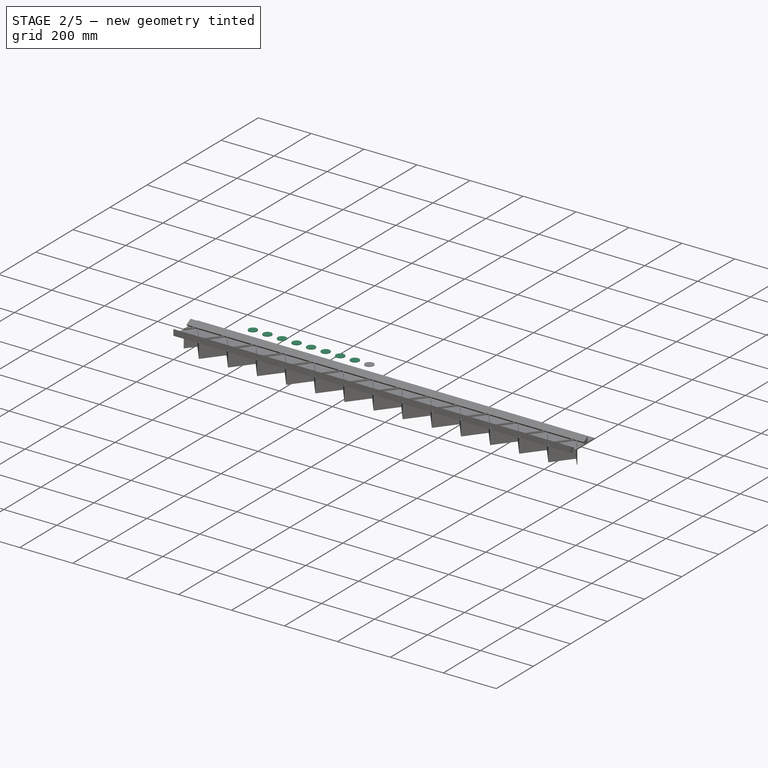
[diagram: stage 2 of 5 — iso view after this stage's code; geometry added in this stage tinted green]
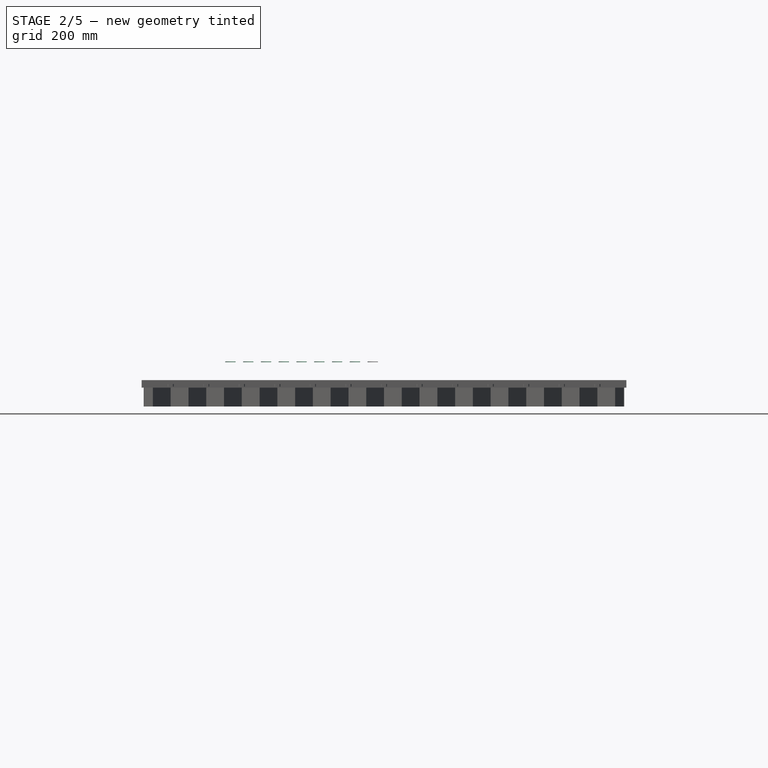
[diagram: stage 2 of 5 — front view after this stage's code; geometry added in this stage tinted green]
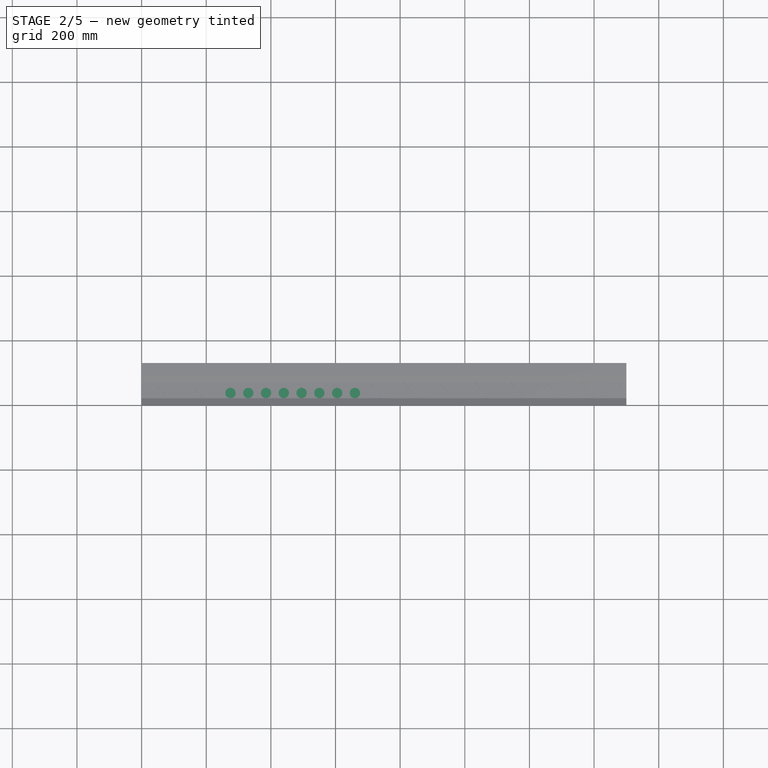
[diagram: stage 2 of 5 — top view after this stage's code; geometry added in this stage tinted green]
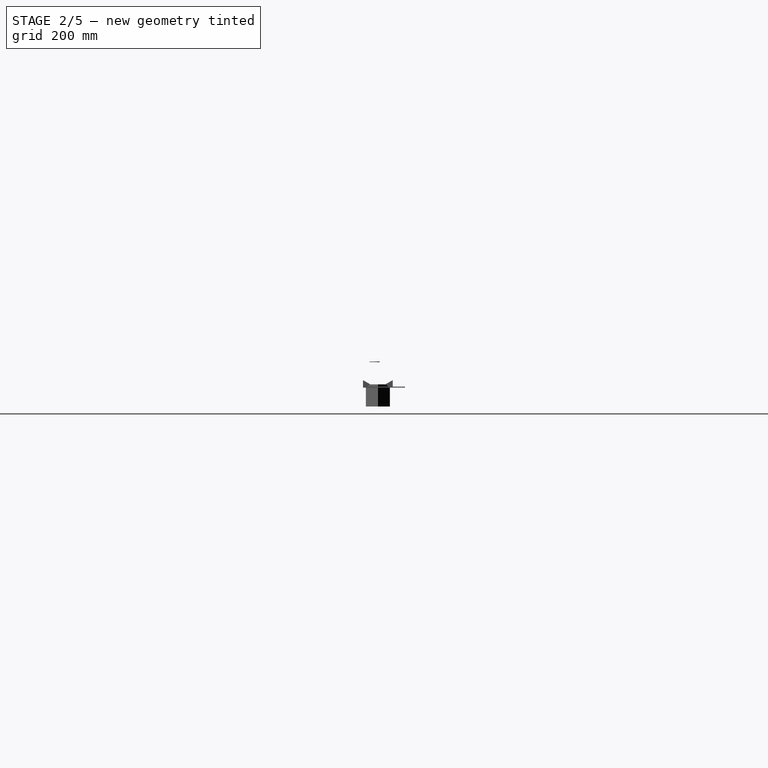
[diagram: stage 2 of 5 — right view after this stage's code; geometry added in this stage tinted green]
FEATURE [Part::Cylinder] Cylinder018  label="Cylindre018"
  Angle = 360
  AttacherType = Attacher::AttachEngine3D
  FirstAngle = 0
  Height = 2
  Placement = pos=(275,36,78.7) rot=(0,0,1;0rad)
  Radius = 16
  SecondAngle = 0
FEATURE [Part::Cylinder] Cylinder019  label="Cylindre019"
  Angle = 360
  AttacherType = Attacher::AttachEngine3D
  FirstAngle = 0
  Height = 2
  Placement = pos=(330,36,78.7) rot=(0,0,1;0rad)
  Radius = 16
  SecondAngle = 0
FEATURE [Part::Cylinder] Cylinder020  label="Cylindre020"
  Angle = 360
  AttacherType = Attacher::AttachEngine3D
  FirstAngle = 0
  Height = 2
  Placement = pos=(385,36,78.7) rot=(0,0,1;0rad)
  Radius = 16
  SecondAngle = 0
FEATURE [Part::Cylinder] Cylinder021  label="Cylindre021"
  Angle = 360
  AttacherType = Attacher::AttachEngine3D
  FirstAngle = 0
  Height = 2
  Placement = pos=(440,36,78.7) rot=(0,0,1;0rad)
  Radius = 16
  SecondAngle = 0
FEATURE [Part::Cylinder] Cylinder022  label="Cylindre022"
  Angle = 360
  AttacherType = Attacher::AttachEngine3D
  FirstAngle = 0
  Height = 2
  Placement = pos=(495,36,78.7) rot=(0,0,1;0rad)
  Radius = 16
  SecondAngle = 0
FEATURE [Part::Cylinder] Cylinder023  label="Cylindre023"
  Angle = 360
  AttacherType = Attacher::AttachEngine3D
  FirstAngle = 0
  Height = 2
  Placement = pos=(550,36,78.7) rot=(0,0,1;0rad)
  Radius = 16
  SecondAngle = 0
FEATURE [Part::Cylinder] Cylinder024  label="Cylindre024"
  Angle = 360
  AttacherType = Attacher::AttachEngine3D
  FirstAngle = 0
  Height = 2
  Placement = pos=(605,36,78.7) rot=(0,0,1;0rad)
  Radius = 16
  SecondAngle = 0
FEATURE [Part::Cylinder] Cylinder025  label="Cylindre025"
  Angle = 360
  AttacherType = Attacher::AttachEngine3D
  FirstAngle = 0
  Height = 2
  Placement = pos=(660,36,78.7) rot=(0,0,1;0rad)
  Radius = 16
  SecondAngle = 0
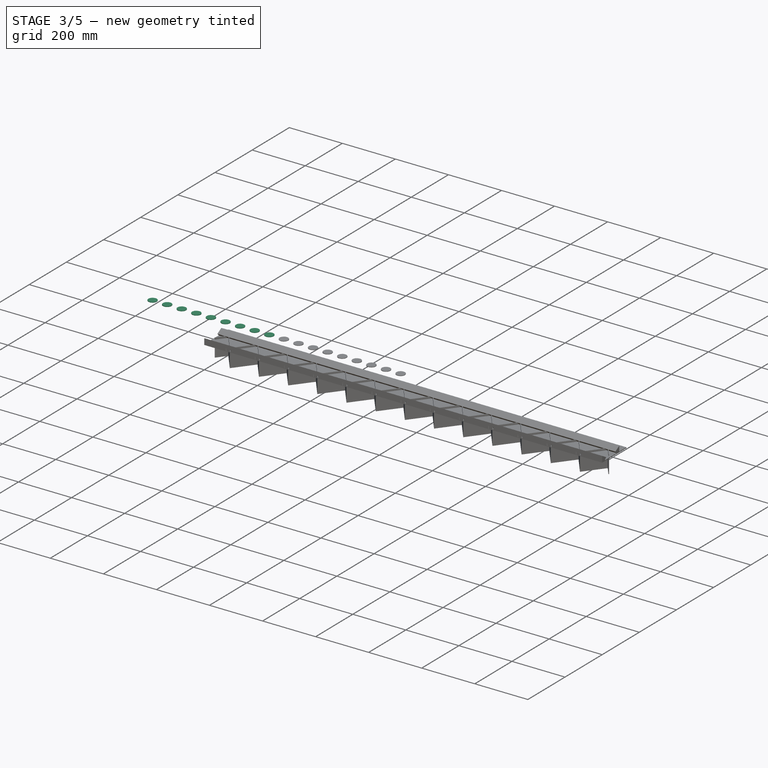
[diagram: stage 3 of 5 — iso view after this stage's code; geometry added in this stage tinted green]
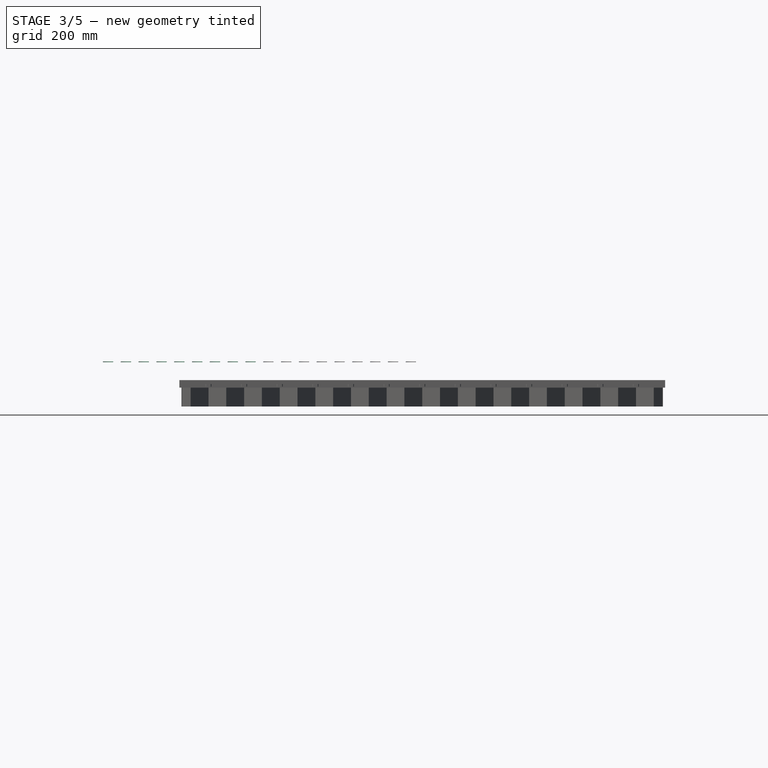
[diagram: stage 3 of 5 — front view after this stage's code; geometry added in this stage tinted green]
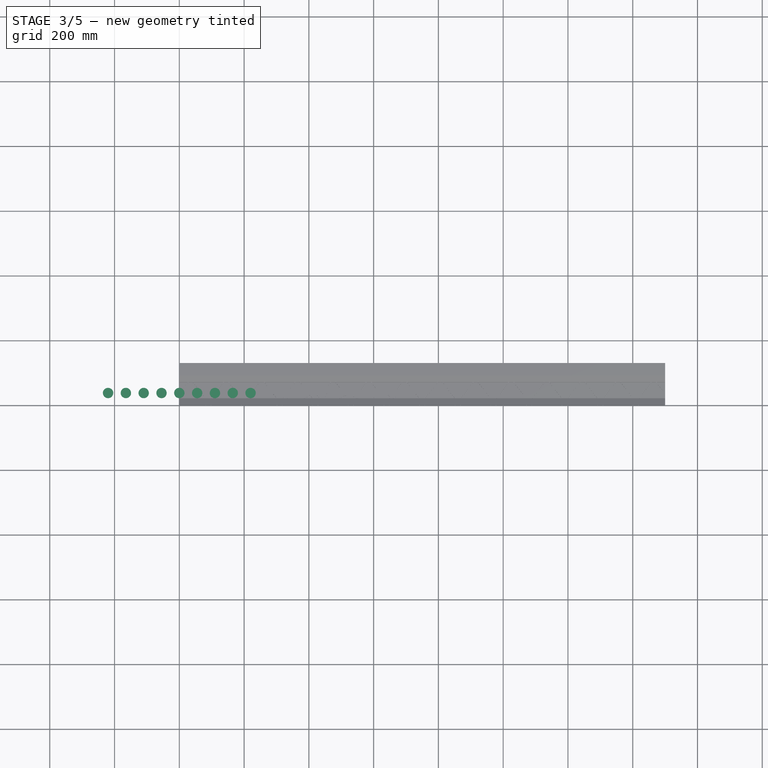
[diagram: stage 3 of 5 — top view after this stage's code; geometry added in this stage tinted green]
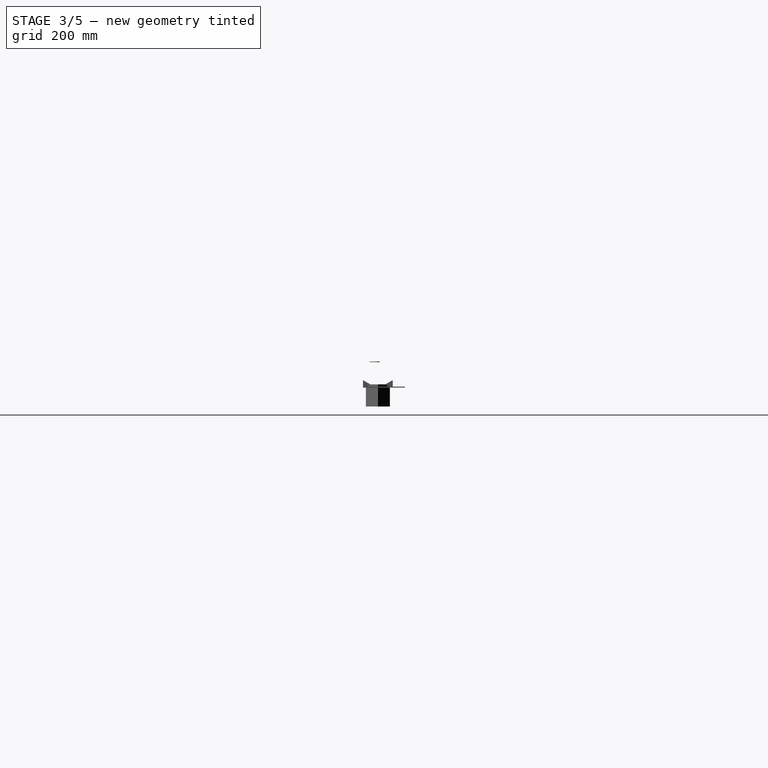
[diagram: stage 3 of 5 — right view after this stage's code; geometry added in this stage tinted green]
FEATURE [Part::Cylinder] Cylinder009  label="Cylindre009"
  Angle = 360
  AttacherType = Attacher::AttachEngine3D
  FirstAngle = 0
  Height = 2
  Placement = pos=(-220,36,78.7) rot=(0,0,1;0rad)
  Radius = 16
  SecondAngle = 0
FEATURE [Part::Cylinder] Cylinder010  label="Cylindre010"
  Angle = 360
  AttacherType = Attacher::AttachEngine3D
  FirstAngle = 0
  Height = 2
  Placement = pos=(-165,36,78.7) rot=(0,0,1;0rad)
  Radius = 16
  SecondAngle = 0
FEATURE [Part::Cylinder] Cylinder011  label="Cylindre011"
  Angle = 360
  AttacherType = Attacher::AttachEngine3D
  FirstAngle = 0
  Height = 2
  Placement = pos=(-110,36,78.7) rot=(0,0,1;0rad)
  Radius = 16
  SecondAngle = 0
FEATURE [Part::Cylinder] Cylinder012  label="Cylindre012"
  Angle = 360
  AttacherType = Attacher::AttachEngine3D
  FirstAngle = 0
  Height = 2
  Placement = pos=(-55,36,78.7) rot=(0,0,1;0rad)
  Radius = 16
  SecondAngle = 0
FEATURE [Part::Cylinder] Cylinder013  label="Cylindre013"
  Angle = 360
  AttacherType = Attacher::AttachEngine3D
  FirstAngle = 0
  Height = 2
  Placement = pos=(0,36,78.7) rot=(0,0,1;0rad)
  Radius = 16
  SecondAngle = 0
FEATURE [Part::Cylinder] Cylinder014  label="Cylindre014"
  Angle = 360
  AttacherType = Attacher::AttachEngine3D
  FirstAngle = 0
  Height = 2
  Placement = pos=(55,36,78.7) rot=(0,0,1;0rad)
  Radius = 16
  SecondAngle = 0
FEATURE [Part::Cylinder] Cylinder015  label="Cylindre015"
  Angle = 360
  AttacherType = Attacher::AttachEngine3D
  FirstAngle = 0
  Height = 2
  Placement = pos=(110,36,78.7) rot=(0,0,1;0rad)
  Radius = 16
  SecondAngle = 0
FEATURE [Part::Cylinder] Cylinder016  label="Cylindre016"
  Angle = 360
  AttacherType = Attacher::AttachEngine3D
  FirstAngle = 0
  Height = 2
  Placement = pos=(165,36,78.7) rot=(0,0,1;0rad)
  Radius = 16
  SecondAngle = 0
FEATURE [Part::Cylinder] Cylinder017  label="Cylindre017"
  Angle = 360
  AttacherType = Attacher::AttachEngine3D
  FirstAngle = 0
  Height = 2
  Placement = pos=(220,36,78.7) rot=(0,0,1;0rad)
  Radius = 16
  SecondAngle = 0
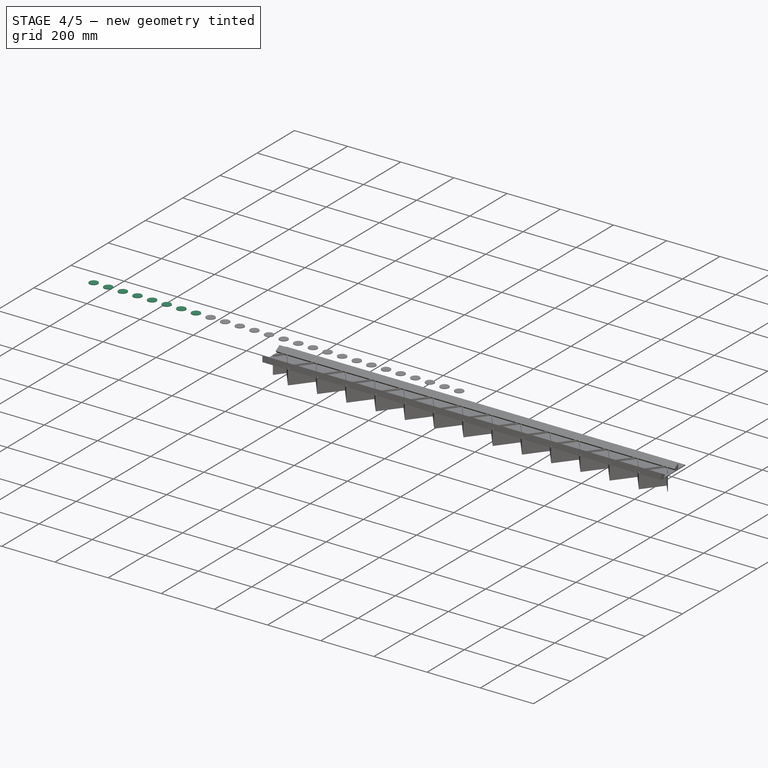
[diagram: stage 4 of 5 — iso view after this stage's code; geometry added in this stage tinted green]
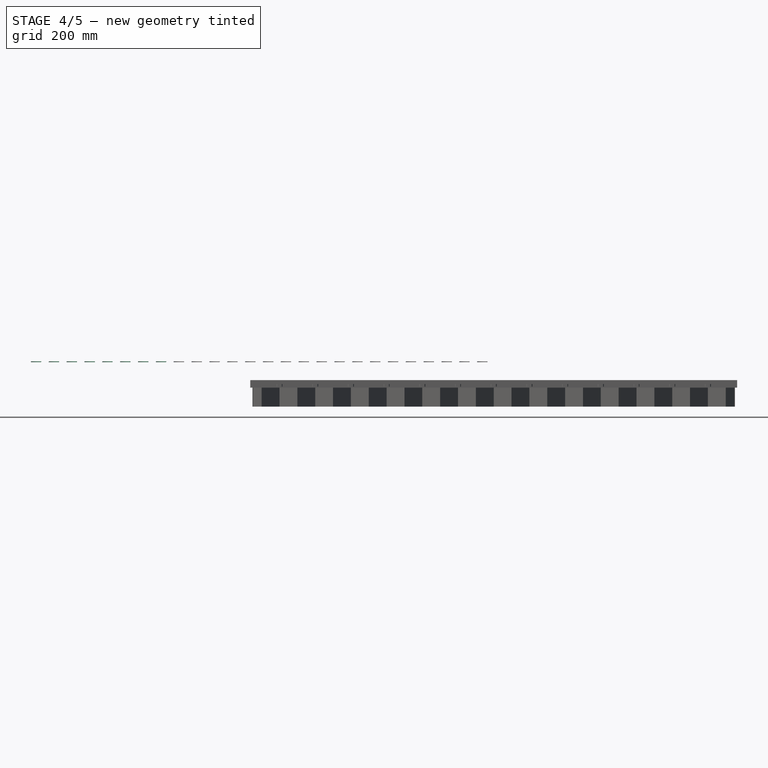
[diagram: stage 4 of 5 — front view after this stage's code; geometry added in this stage tinted green]
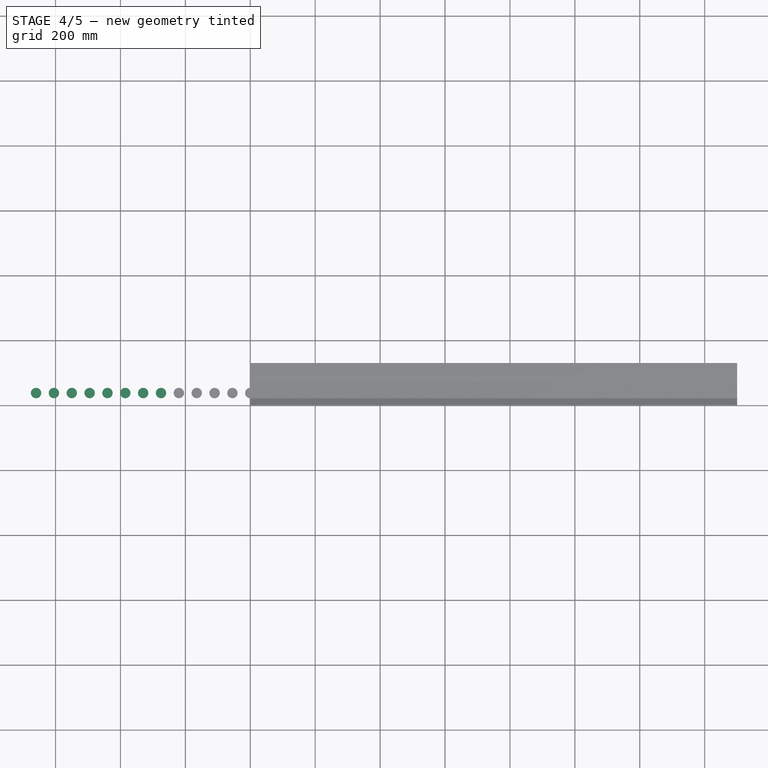
[diagram: stage 4 of 5 — top view after this stage's code; geometry added in this stage tinted green]
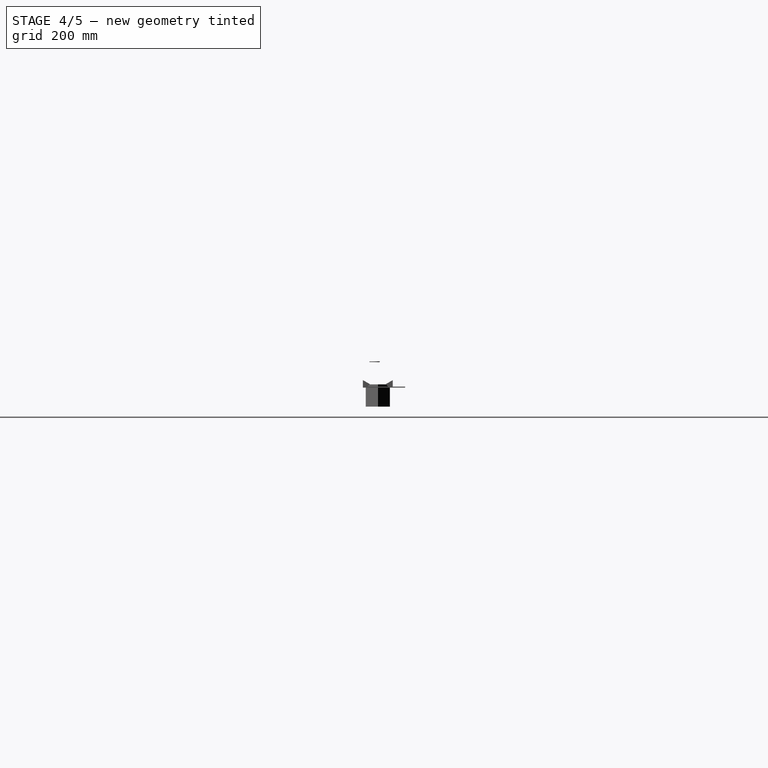
[diagram: stage 4 of 5 — right view after this stage's code; geometry added in this stage tinted green]
FEATURE [Part::Cylinder] Cylinder001  label="Cylindre001"
  Angle = 360
  AttacherType = Attacher::AttachEngine3D
  FirstAngle = 0
  Height = 2
  Placement = pos=(-660,36,78.7) rot=(0,0,1;0rad)
  Radius = 16
  SecondAngle = 0
FEATURE [Part::Cylinder] Cylinder002  label="Cylindre002"
  Angle = 360
  AttacherType = Attacher::AttachEngine3D
  FirstAngle = 0
  Height = 2
  Placement = pos=(-605,36,78.7) rot=(0,0,1;0rad)
  Radius = 16
  SecondAngle = 0
FEATURE [Part::Cylinder] Cylinder003  label="Cylindre003"
  Angle = 360
  AttacherType = Attacher::AttachEngine3D
  FirstAngle = 0
  Height = 2
  Placement = pos=(-550,36,78.7) rot=(0,0,1;0rad)
  Radius = 16
  SecondAngle = 0
FEATURE [Part::Cylinder] Cylinder004  label="Cylindre004"
  Angle = 360
  AttacherType = Attacher::AttachEngine3D
  FirstAngle = 0
  Height = 2
  Placement = pos=(-495,36,78.7) rot=(0,0,1;0rad)
  Radius = 16
  SecondAngle = 0
FEATURE [Part::Cylinder] Cylinder005  label="Cylindre005"
  Angle = 360
  AttacherType = Attacher::AttachEngine3D
  FirstAngle = 0
  Height = 2
  Placement = pos=(-440,36,78.7) rot=(0,0,1;0rad)
  Radius = 16
  SecondAngle = 0
FEATURE [Part::Cylinder] Cylinder006  label="Cylindre006"
  Angle = 360
  AttacherType = Attacher::AttachEngine3D
  FirstAngle = 0
  Height = 2
  Placement = pos=(-385,36,78.7) rot=(0,0,1;0rad)
  Radius = 16
  SecondAngle = 0
FEATURE [Part::Cylinder] Cylinder007  label="Cylindre007"
  Angle = 360
  AttacherType = Attacher::AttachEngine3D
  FirstAngle = 0
  Height = 2
  Placement = pos=(-330,36,78.7) rot=(0,0,1;0rad)
  Radius = 16
  SecondAngle = 0
FEATURE [Part::Cylinder] Cylinder008  label="Cylindre008"
  Angle = 360
  AttacherType = Attacher::AttachEngine3D
  FirstAngle = 0
  Height = 2
  Placement = pos=(-275,36,78.7) rot=(0,0,1;0rad)
  Radius = 16
  SecondAngle = 0
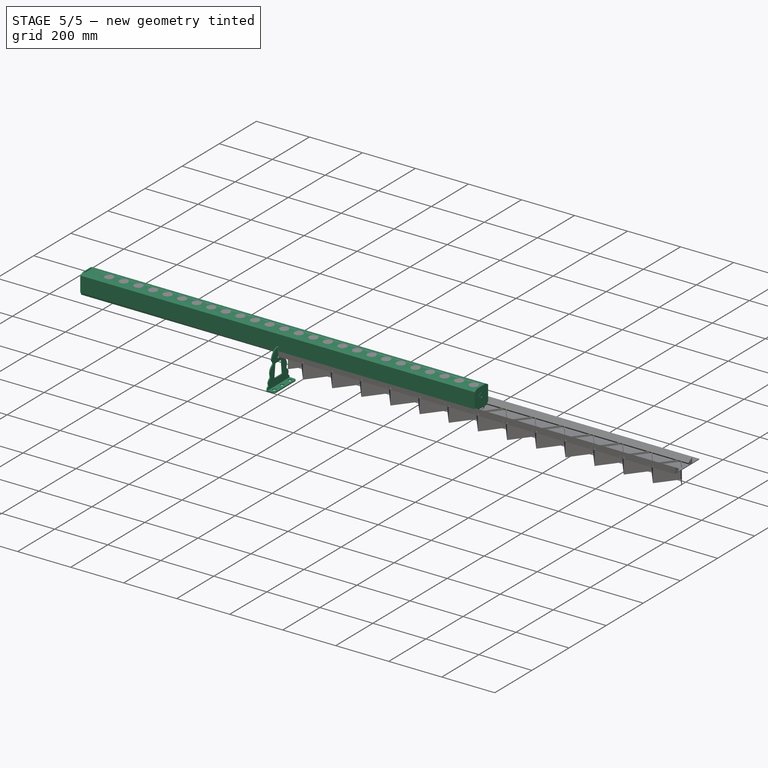
[diagram: stage 5 of 5 — iso view after this stage's code; geometry added in this stage tinted green]
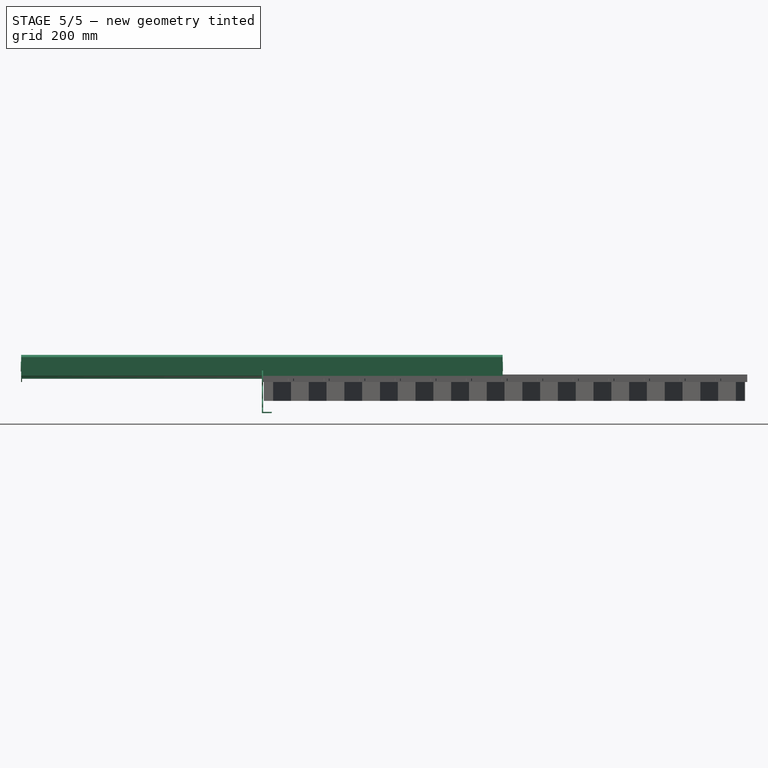
[diagram: stage 5 of 5 — front view after this stage's code; geometry added in this stage tinted green]
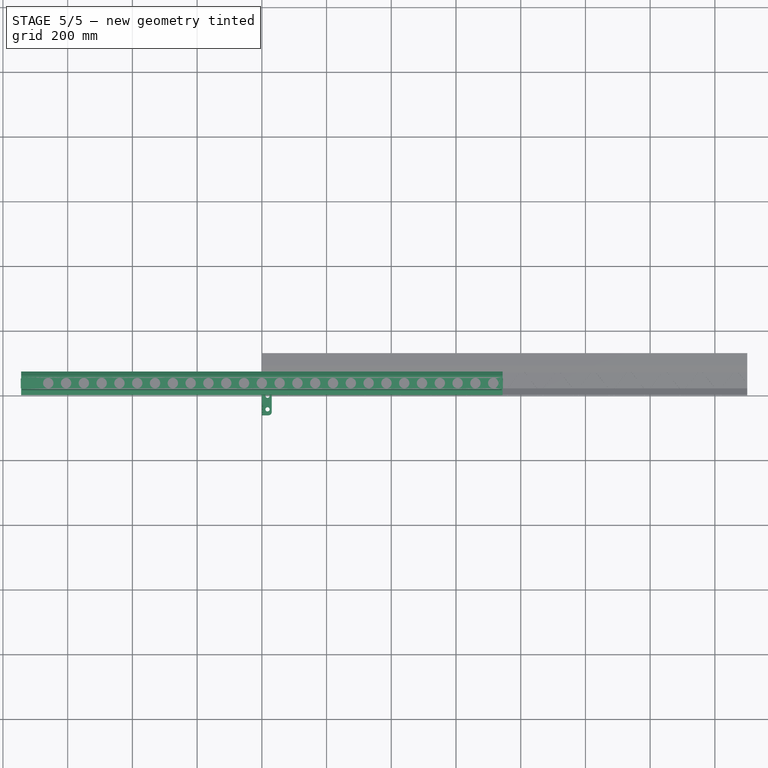
[diagram: stage 5 of 5 — top view after this stage's code; geometry added in this stage tinted green]
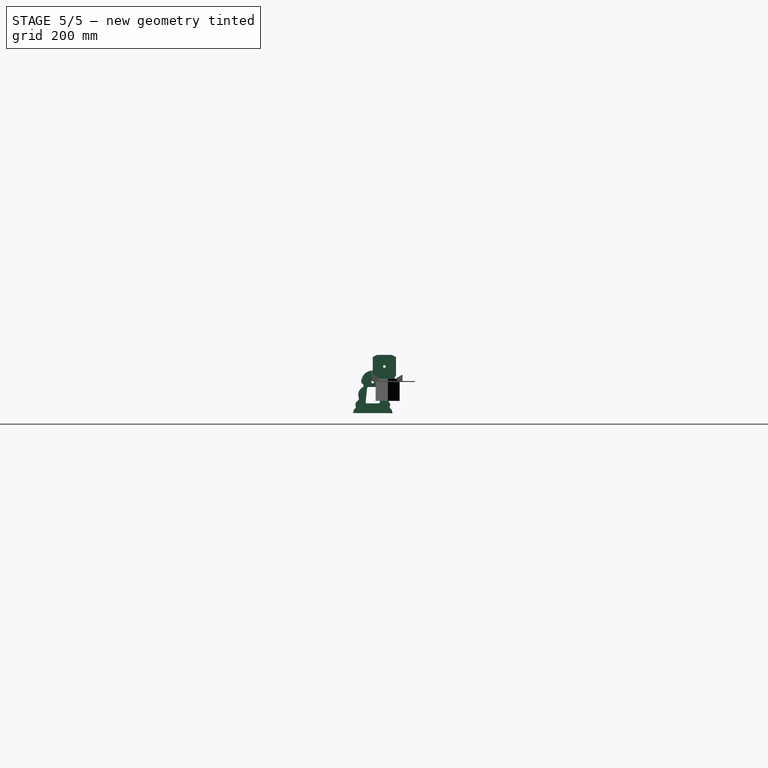
[diagram: stage 5 of 5 — right view after this stage's code; geometry added in this stage tinted green]
FEATURE [Sketcher::SketchObject] Sketch
  ArcFitTolerance = 1e-06
  AttachmentSupport = -> [YZ_Plane001]
  FullyConstrained = true
  MakeInternals = false
  MapMode = 5
  Placement = pos=(0,0,0) rot=(0.57735,0.57735,0.57735;2.0944rad)
  sketch-geometry (19):
    g0: LineSegment StartX=23 StartY=6e-16 StartZ=0 EndX=49 EndY=0 EndZ=0
    g1: LineSegment StartX=49 StartY=0 StartZ=0 EndX=56 EndY=10 EndZ=0
    g2: LineSegment StartX=72 StartY=19 StartZ=0 EndX=72 EndY=77 EndZ=0
    g3: LineSegment StartX=72 StartY=77 StartZ=0 EndX=59 EndY=84 EndZ=0
    g4: LineSegment StartX=59 StartY=84 StartZ=0 EndX=13 EndY=84 EndZ=0
    g5: LineSegment StartX=13 StartY=84 StartZ=0 EndX=-5e-16 EndY=77 EndZ=0
    g6: LineSegment StartX=-5e-16 StartY=77 StartZ=0 EndX=0 EndY=19 EndZ=0
    g7: LineSegment StartX=16 StartY=10 StartZ=0 EndX=23 EndY=6e-16 EndZ=0
    g8: LineSegment StartX=16 StartY=10 StartZ=0 EndX=5 EndY=10 EndZ=0
    g9: LineSegment StartX=5 StartY=10 StartZ=0 EndX=3 EndY=17 EndZ=0
    g10: LineSegment StartX=3 StartY=17 StartZ=0 EndX=0 EndY=19 EndZ=0
    g11: LineSegment StartX=56 StartY=10 StartZ=0 EndX=67 EndY=10 EndZ=0
    g12: LineSegment StartX=67 StartY=10 StartZ=0 EndX=69 EndY=17 EndZ=0
    g13: LineSegment StartX=69 StartY=17 StartZ=0 EndX=72 EndY=19 EndZ=0
    g14: Circle CenterX=36 CenterY=48 CenterZ=0 NormalX=0 NormalY=0 NormalZ=1 AngleXU=0 Radius=4
    g15: ArcOfCircle CenterX=27.5 CenterY=7.5 CenterZ=0 NormalX=0 NormalY=0 NormalZ=1 AngleXU=0 Radius=2.5 StartAngle=1.5708 EndAngle=4.71239
    g16: ArcOfCircle CenterX=44.5 CenterY=7.5 CenterZ=0 NormalX=0 NormalY=0 NormalZ=1 AngleXU=0 Radius=2.5 StartAngle=4.71239 EndAngle=7.85398
    g17: LineSegment StartX=27.5 StartY=10 StartZ=0 EndX=44.5 EndY=10 EndZ=0
    g18: LineSegment StartX=27.5 StartY=5 StartZ=0 EndX=44.5 EndY=5 EndZ=0
  constraints (55):
    c: PointOnObject(g0,g-1)
    c: PointOnObject(g0,g-1)
    c: Coincident(g0,g1)
    c: Coincident(g2,g3)
    c: Coincident(g3,g4)
    c: Horizontal(g4)
    c: Coincident(g4,g5)
    c: PointOnObject(g5,g-2)
    c: Coincident(g5,g6)
    c: PointOnObject(g6,g-2)
    c: Coincident(g7,g0)
    c: DistanceX(g5,g2) = 72
    c: DistanceY(g0,g3) = 84
    c: DistanceX(g0,g0) = 26
    c: DistanceX(g4,g4) = 46
    c: DistanceY(g6,g6) = 58
    c: Coincident(g7,g8)
    c: Coincident(g8,g9)
    c: Coincident(g9,g10)
    c: Coincident(g10,g6)
    c: Coincident(g1,g11)
    c: Horizontal(g11)
    c: Coincident(g11,g12)
    c: Coincident(g12,g13)
    c: Coincident(g13,g2)
    c: Horizontal(g8)
    c: Equal(g2,g6)
    c: Equal(g5,g3)
    c: Horizontal(g5,g2)
    c: Equal(g8,g11)
    c: Horizontal(g1,g7)
    c: Equal(g7,g1)
    c: DistanceX(g7,g1) = 40
    c: Equal(g12,g9)
    c: Horizontal(g12,g9)
    c: Equal(g10,g13)
    c: Vertical(g2)
    c: DistanceY(g0,g7) = 10
    c: DistanceX(g12,g2) = 3
    c: DistanceX(g1,g11) = 11
    c: DistanceY(g11,g12) = 7
    c: DistanceY(g5,g4) = 7
    c: DistanceY(g0,g14) = 48
    c: DistanceX(g6,g14) = 36
    c: Diameter(g14) = 8
    c: Tangent(g15,g17) = 1.5708
    c: Tangent(g15,g18) = -1.5708
    c: Tangent(g16,g17) = 1.5708
    c: Tangent(g16,g18) = -1.5708
    c: Equal(g15,g16)
    c: Horizontal(g17)
    c: DistanceX(g15,g16) = 17
    c: Radius(g15) = 2.5
    c: DistanceY(g0,g15) = 7.5
    c: DistanceX(g-1,g15) = 27.5
FEATURE [PartDesign::Pad] Pad
  Direction = (1,0,0)
  Length = 1488
  Length2 = 10
  Midplane = true
  Placement = pos=(0,0,0) rot=(1,1,1;2.0944rad)
  Profile = -> Sketch
  ReferenceAxis = -> Sketch [N_Axis]
  Refine = true
  Suppressed = false
  Type = 0
FEATURE [Sketcher::SketchObject] Sketch001
  ArcFitTolerance = 1e-06
  FullyConstrained = true
  MakeInternals = false
  MapMode = 4
  Placement = pos=(0,1.652e-13,0) rot=(0.58,0.58,-0.58;4.18879rad)
  sketch-geometry (2):
    g0: Circle CenterX=36 CenterY=-48 CenterZ=0 NormalX=0 NormalY=0 NormalZ=1 AngleXU=0 Radius=15
    g1: Circle CenterX=36 CenterY=-48 CenterZ=0 NormalX=0 NormalY=0 NormalZ=1 AngleXU=0 Radius=4
  constraints (5):
    c: DistanceY(g0,g-1) = 48
    c: DistanceX(g-1,g0) = 36
    c: Diameter(g0) = 30
    c: Coincident(g1,g0)
    c: Diameter(g1) = 8
FEATURE [Sketcher::SketchObject] Sketch002
  ArcFitTolerance = 1e-06
  AttachmentSupport = -> [YZ_Plane001]
  FullyConstrained = true
  MakeInternals = false
  MapMode = 5
  Placement = pos=(0,0,0) rot=(0.57735,0.57735,0.57735;2.0944rad)
  sketch-geometry (4):
    g0: LineSegment StartX=11 StartY=87.44 StartZ=0 EndX=17.5 EndY=80.5 EndZ=0
    g1: LineSegment StartX=17.5 StartY=80.5 StartZ=0 EndX=54.5 EndY=80.5 EndZ=0
    g2: LineSegment StartX=54.5 StartY=80.5 StartZ=0 EndX=61 EndY=87.44 EndZ=0
    g3: LineSegment StartX=61 StartY=87.44 StartZ=0 EndX=11 EndY=87.44 EndZ=0
  constraints (12):
    c: Coincident(g0,g1)
    c: Horizontal(g1)
    c: Coincident(g1,g2)
    c: Coincident(g2,g3)
    c: Coincident(g3,g0)
    c: Horizontal(g3)
    c: Equal(g0,g2)
    c: DistanceX(g1,g1) = 37
    c: DistanceX(g3,g3) = 50
    c: DistanceY(g-1,g0) = 80.5
    c: DistanceY(g0,g0) = 6.94
    c: DistanceX(g-1,g0) = 17.5
FEATURE [PartDesign::Pocket] Pocket
  AlongSketchNormal = false
  BaseFeature = -> Pad
  Direction = (-1,0,0)
  Length = 1482
  Length2 = 5
  Midplane = true
  Placement = pos=(0,0,0) rot=(1,1,1;2.0944rad)
  Profile = -> Sketch002
  ReferenceAxis = -> Sketch002 [N_Axis]
  Refine = true
  Suppressed = false
  Type = 0
FEATURE [PartDesign::Pad] Pad001
  BaseFeature = -> Pocket
  Direction = (-1,-2e-16,-2e-16)
  Length = 1490
  Length2 = 10
  Midplane = true
  Placement = pos=(0,0,0) rot=(1,1,1;2.0944rad)
  Profile = -> Sketch001
  ReferenceAxis = -> Sketch001 [N_Axis]
  Refine = true
  Suppressed = false
  Type = 0
FEATURE [Sketcher::SketchObject] Sketch003
  ArcFitTolerance = 1e-06
  AttachmentOffset = pos=(0,0,0) rot=(0,0,1;1.5708rad)
  AttachmentSupport = -> [Pad001]
  FullyConstrained = true
  MakeInternals = false
  MapMode = 5
  Placement = pos=(0,1.77e-14,80.5) rot=(0,0,1;0rad)
  sketch-geometry (53):
    g0: Circle CenterX=-715 CenterY=36 CenterZ=0 NormalX=0 NormalY=0 NormalZ=1 AngleXU=0 Radius=16
    g1: Circle CenterX=-660 CenterY=36 CenterZ=0 NormalX=0 NormalY=0 NormalZ=1 AngleXU=0 Radius=16
    g2: Circle CenterX=-605 CenterY=36 CenterZ=0 NormalX=0 NormalY=0 NormalZ=1 AngleXU=0 Radius=16
    g3: Circle CenterX=-550 CenterY=36 CenterZ=0 NormalX=0 NormalY=0 NormalZ=1 AngleXU=0 Radius=16
    g4: Circle CenterX=-495 CenterY=36 CenterZ=0 NormalX=0 NormalY=0 NormalZ=1 AngleXU=0 Radius=16
    g5: Circle CenterX=-440 CenterY=36 CenterZ=0 NormalX=0 NormalY=0 NormalZ=1 AngleXU=0 Radius=16
    g6: Circle CenterX=-385 CenterY=36 CenterZ=0 NormalX=0 NormalY=0 NormalZ=1 AngleXU=0 Radius=16
    g7: Circle CenterX=-330 CenterY=36 CenterZ=0 NormalX=0 NormalY=0 NormalZ=1 AngleXU=0 Radius=16
    g8: Circle CenterX=-275 CenterY=36 CenterZ=0 NormalX=0 NormalY=0 NormalZ=1 AngleXU=0 Radius=16
    g9: Circle CenterX=-220 CenterY=36 CenterZ=0 NormalX=0 NormalY=0 NormalZ=1 AngleXU=0 Radius=16
    g10: Circle CenterX=-165 CenterY=36 CenterZ=0 NormalX=0 NormalY=0 NormalZ=1 AngleXU=0 Radius=16
    g11: Circle CenterX=-110 CenterY=36 CenterZ=0 NormalX=0 NormalY=0 NormalZ=1 AngleXU=0 Radius=16
    g12: Circle CenterX=-55 CenterY=36 CenterZ=0 NormalX=0 NormalY=0 NormalZ=1 AngleXU=0 Radius=16
    g13: Circle CenterX=-1.016e-10 CenterY=36 CenterZ=0 NormalX=0 NormalY=0 NormalZ=1 AngleXU=0 Radius=16
    g14: Circle CenterX=55 CenterY=36 CenterZ=0 NormalX=0 NormalY=0 NormalZ=1 AngleXU=0 Radius=16
    g15: Circle CenterX=110 CenterY=36 CenterZ=0 NormalX=0 NormalY=0 NormalZ=1 AngleXU=0 Radius=16
    g16: Circle CenterX=165 CenterY=36 CenterZ=0 NormalX=0 NormalY=0 NormalZ=1 AngleXU=0 Radius=16
    g17: Circle CenterX=220 CenterY=36 CenterZ=0 NormalX=0 NormalY=0 NormalZ=1 AngleXU=0 Radius=16
    g18: Circle CenterX=275 CenterY=36 CenterZ=0 NormalX=0 NormalY=0 NormalZ=1 AngleXU=0 Radius=16
    g19: Circle CenterX=330 CenterY=36 CenterZ=0 NormalX=0 NormalY=0 NormalZ=1 AngleXU=0 Radius=16
    g20: Circle CenterX=385 CenterY=36 CenterZ=0 NormalX=0 NormalY=0 NormalZ=1 AngleXU=0 Radius=16
    g21: Circle CenterX=440 CenterY=36 CenterZ=0 NormalX=0 NormalY=0 NormalZ=1 AngleXU=0 Radius=16
    g22: Circle CenterX=495 CenterY=36 CenterZ=0 NormalX=0 NormalY=0 NormalZ=1 AngleXU=0 Radius=16
    g23: Circle CenterX=550 CenterY=36 CenterZ=0 NormalX=0 NormalY=0 NormalZ=1 AngleXU=0 Radius=16
    g24: Circle CenterX=605 CenterY=36 CenterZ=0 NormalX=0 NormalY=0 NormalZ=1 AngleXU=0 Radius=16
    g25: Circle CenterX=660 CenterY=36 CenterZ=0 NormalX=0 NormalY=0 NormalZ=1 AngleXU=0 Radius=16
    g26: Circle CenterX=715 CenterY=36 CenterZ=0 NormalX=0 NormalY=0 NormalZ=1 AngleXU=0 Radius=16
    g27: LineSegment [constr] StartX=-715 StartY=36 StartZ=0 EndX=-660 EndY=36 EndZ=0
    g28: LineSegment [constr] StartX=-660 StartY=36 StartZ=0 EndX=-605 EndY=36 EndZ=0
    g29: LineSegment [constr] StartX=-605 StartY=36 StartZ=0 EndX=-550 EndY=36 EndZ=0
    g30: LineSegment [constr] StartX=-550 StartY=36 StartZ=0 EndX=-495 EndY=36 EndZ=0
    g31: LineSegment [constr] StartX=-495 StartY=36 StartZ=0 EndX=-440 EndY=36 EndZ=0
    g32: LineSegment [constr] StartX=-440 StartY=36 StartZ=0 EndX=-385 EndY=36 EndZ=0
    g33: LineSegment [constr] StartX=-385 StartY=36 StartZ=0 EndX=-330 EndY=36 EndZ=0
    g34: LineSegment [constr] StartX=-330 StartY=36 StartZ=0 EndX=-275 EndY=36 EndZ=0
    g35: LineSegment [constr] StartX=-275 StartY=36 StartZ=0 EndX=-220 EndY=36 EndZ=0
    g36: LineSegment [constr] StartX=-220 StartY=36 StartZ=0 EndX=-165 EndY=36 EndZ=0
    g37: LineSegment [constr] StartX=-165 StartY=36 StartZ=0 EndX=-110 EndY=36 EndZ=0
    g38: LineSegment [constr] StartX=-110 StartY=36 StartZ=0 EndX=-55 EndY=36 EndZ=0
    g39: LineSegment [constr] StartX=-55 StartY=36 StartZ=0 EndX=-1.016e-10 EndY=36 EndZ=0
    g40: LineSegment [constr] StartX=-1.016e-10 StartY=36 StartZ=0 EndX=55 EndY=36 EndZ=0
    g41: LineSegment [constr] StartX=55 StartY=36 StartZ=0 EndX=110 EndY=36 EndZ=0
    g42: LineSegment [constr] StartX=110 StartY=36 StartZ=0 EndX=165 EndY=36 EndZ=0
    g43: LineSegment [constr] StartX=165 StartY=36 StartZ=0 EndX=220 EndY=36 EndZ=0
    g44: LineSegment [constr] StartX=220 StartY=36 StartZ=0 EndX=275 EndY=36 EndZ=0
    g45: LineSegment [constr] StartX=275 StartY=36 StartZ=0 EndX=330 EndY=36 EndZ=0
    g46: LineSegment [constr] StartX=330 StartY=36 StartZ=0 EndX=385 EndY=36 EndZ=0
    g47: LineSegment [constr] StartX=385 StartY=36 StartZ=0 EndX=440 EndY=36 EndZ=0
    g48: LineSegment [constr] StartX=440 StartY=36 StartZ=0 EndX=495 EndY=36 EndZ=0
    g49: LineSegment [constr] StartX=495 StartY=36 StartZ=0 EndX=550 EndY=36 EndZ=0
    g50: LineSegment [constr] StartX=550 StartY=36 StartZ=0 EndX=605 EndY=36 EndZ=0
    g51: LineSegment [constr] StartX=605 StartY=36 StartZ=0 EndX=660 EndY=36 EndZ=0
    g52: LineSegment [constr] StartX=660 StartY=36 StartZ=0 EndX=715 EndY=36 EndZ=0
  constraints (107):
    c: Equal(g0, g1-g26) x26
    c: Diameter(g0) = 32
    c: Horizontal(g0,g1)
    c: Horizontal(g1,g2)
    c: Horizontal(g2,g3)
    c: Horizontal(g3,g4)
    c: Horizontal(g4,g5)
    c: Horizontal(g5,g6)
    c: Horizontal(g6,g7)
    c: Horizontal(g7,g8)
    c: Horizontal(g8,g9)
    c: Horizontal(g9,g10)
    c: Horizontal(g10,g11)
    c: Horizontal(g11,g12)
    c: Horizontal(g12,g13)
    c: Horizontal(g13,g15)
    c: Horizontal(g15,g14)
    c: Horizontal(g14,g16)
    c: Horizontal(g16,g17)
    c: Horizontal(g17,g18)
    c: Horizontal(g18,g20)
    c: Horizontal(g20,g19)
    c: Horizontal(g19,g21)
    c: Horizontal(g21,g22)
    c: Horizontal(g22,g23)
    c: Horizontal(g23,g24)
    c: Horizontal(g24,g25)
    c: Coincident(g27,g0)
    c: Coincident(g27,g1)
    c: Coincident(g27,g28)
    c: Coincident(g28,g2)
    c: Coincident(g28,g29)
    c: Coincident(g29,g3)
    c: Coincident(g29,g30)
    c: Coincident(g30,g4)
    c: Coincident(g30,g31)
    c: Coincident(g31,g5)
    c: Coincident(g31,g32)
    c: Coincident(g32,g6)
    c: Coincident(g32,g33)
    c: Coincident(g33,g7)
    c: Coincident(g33,g34)
    c: Coincident(g34,g8)
    c: Coincident(g34,g35)
    c: Coincident(g35,g9)
    c: Coincident(g35,g36)
    c: Coincident(g36,g10)
    c: Coincident(g36,g37)
    c: Coincident(g37,g11)
    c: Coincident(g37,g38)
    c: Coincident(g38,g12)
    c: Coincident(g38,g39)
    c: Coincident(g39,g13)
    c: Coincident(g39,g40)
    c: Coincident(g40,g14)
    c: Coincident(g40,g41)
    c: Coincident(g41,g15)
    c: Coincident(g41,g42)
    c: Coincident(g42,g16)
    c: Coincident(g42,g43)
    c: Coincident(g43,g17)
    c: Coincident(g43,g44)
    c: Coincident(g44,g18)
    c: Coincident(g44,g45)
    c: Coincident(g45,g19)
    c: Coincident(g45,g46)
    c: Coincident(g46,g20)
    c: Coincident(g46,g47)
    c: Coincident(g47,g21)
    c: Coincident(g47,g48)
    c: Coincident(g48,g22)
    c: Coincident(g48,g49)
    c: Coincident(g49,g23)
    c: Coincident(g49,g50)
    c: Coincident(g50,g24)
    c: Coincident(g50,g51)
    c: Coincident(g51,g25)
    c: Coincident(g51,g52)
    c: Coincident(g52,g26)
    c: Equal(g28,g29)
    c: Equal(g29,g30)
    c: Equal(g30,g31)
    c: Equal(g31,g32)
    c: Equal(g32,g33)
    c: Equal(g33,g34)
    c: Equal(g34,g35)
    c: Equal(g35,g36)
    c: Equal(g36,g37)
    c: Equal(g37,g38)
    c: Equal(g38,g39)
    c: Equal(g39,g40)
    c: Equal(g40,g41)
    c: Equal(g41,g42)
    c: Equal(g42,g43)
    c: Equal(g43,g44)
    c: Equal(g44,g45)
    c: Equal(g45,g46)
    c: Equal(g46,g47)
    c: Equal(g47,g48)
    c: Equal(g48,g49)
    c: Equal(g49,g50)
    c: Equal(g50,g51)
    c: Equal(g51,g52)
    c: DistanceX(g0,g1) = 55
    c: DistanceX(g0,g26) = 1430
    c: Symmetric(g0,g26,g-2)
    c: Distance(g13,g-1) = 36
FEATURE [PartDesign::Pocket] Pocket001
  AlongSketchNormal = false
  BaseFeature = -> Pad001
  Direction = (0,0,-1)
  Length = 1
  Length2 = 5
  Placement = pos=(0,0,0) rot=(1,1,1;2.0944rad)
  Profile = -> Sketch003
  ReferenceAxis = -> Sketch003 [N_Axis]
  Refine = true
  Suppressed = false
  Type = 0
FEATURE [Sketcher::SketchObject] Sketch004
  ArcFitTolerance = 1e-06
  AttachmentSupport = -> [YZ_Plane001]
  FullyConstrained = true
  MakeInternals = false
  MapMode = 5
  Placement = pos=(0,0,0) rot=(0.57735,0.57735,0.57735;2.0944rad)
  sketch-geometry (4):
    g0: LineSegment StartX=12 StartY=0 StartZ=0 EndX=60 EndY=0 EndZ=0
    g1: LineSegment StartX=60 StartY=0 StartZ=0 EndX=60 EndY=15 EndZ=0
    g2: LineSegment StartX=60 StartY=15 StartZ=0 EndX=12 EndY=15 EndZ=0
    g3: LineSegment StartX=12 StartY=15 StartZ=0 EndX=12 EndY=0 EndZ=0
  constraints (12):
    c: Coincident(g0,g1)
    c: Coincident(g1,g2)
    c: Coincident(g2,g3)
    c: Coincident(g3,g0)
    c: Horizontal(g0)
    c: Horizontal(g2)
    c: Vertical(g1)
    c: Vertical(g3)
    c: DistanceX(g0,g0) = 48
    c: DistanceY(g1,g1) = 15
    c: Horizontal(g0,g-1)
    c: Distance(g0,g-1) = 12
FEATURE [PartDesign::Pocket] Pocket002
  BaseFeature = -> Pocket001
  Direction = (-1,0,0)
  Length = 1482
  Length2 = 5
  Midplane = true
  Placement = pos=(0,0,0) rot=(1,1,1;2.0944rad)
  Profile = -> Sketch004
  ReferenceAxis = -> Sketch004 [N_Axis]
  Refine = true
  Suppressed = false
  Type = 0
FEATURE [PartDesign::Body] Body  label="Barre_27Leds"
  AllowCompound = false
  Group = -> [Sketch,Pad,Sketch001,Sketch002,Pocket,Pad001,Sketch003,Pocket001,Sketch004,Pocket002]
  Origin = -> Origin001
  Tip = -> Pocket002
FEATURE [Sketcher::SketchObject] Sketch005
  ArcFitTolerance = 1e-06
  AttachmentSupport = -> [YZ_Plane002]
  FullyConstrained = false
  MakeInternals = false
  MapMode = 5
  Placement = pos=(0,0,0) rot=(0.57735,0.57735,0.57735;2.0944rad)
  sketch-geometry (27):
    g0: Circle CenterX=0 CenterY=0 CenterZ=0 NormalX=0 NormalY=0 NormalZ=1 AngleXU=0 Radius=4.25
    g1: ArcOfCircle CenterX=0 CenterY=0 CenterZ=0 NormalX=0 NormalY=0 NormalZ=1 AngleXU=0 Radius=35.5 StartAngle=0 EndAngle=3.14159
    g2: ArcOfCircle CenterX=30.5 CenterY=0 CenterZ=0 NormalX=0 NormalY=0 NormalZ=1 AngleXU=0 Radius=5 StartAngle=5.16269 EndAngle=6.28319
    g3: ArcOfCircle CenterX=35.7228 CenterY=-10.8038 CenterZ=0 NormalX=0 NormalY=0 NormalZ=1 AngleXU=0 Radius=7 StartAngle=2.0211 EndAngle=4.17816
    g4: ArcOfCircle CenterX=18.9198 CenterY=-39.2055 CenterZ=0 NormalX=0 NormalY=0 NormalZ=1 AngleXU=0 Radius=26 StartAngle=5.92725 EndAngle=7.31975
    g5: ArcOfCircle CenterX=50.7887 CenterY=-51.0535 CenterZ=0 NormalX=0 NormalY=0 NormalZ=1 AngleXU=0 Radius=8 StartAngle=2.78566 EndAngle=4.15192
    g6: ArcOfCircle CenterX=38.5623 CenterY=-70.5346 CenterZ=0 NormalX=0 NormalY=0 NormalZ=1 AngleXU=0 Radius=15 StartAngle=5.90816 EndAngle=7.29351
    g7: ArcOfCircle CenterX=57.1723 CenterY=-77.8604 CenterZ=0 NormalX=0 NormalY=0 NormalZ=1 AngleXU=0 Radius=5 StartAngle=2.76657 EndAngle=4.39248
    g8: LineSegment StartX=60.5 StartY=-96.25 StartZ=0 EndX=-60.5 EndY=-96.25 EndZ=0
    g9: ArcOfCircle CenterX=54.3419 CenterY=-86.4038 CenterZ=0 NormalX=0 NormalY=0 NormalZ=1 AngleXU=0 Radius=4 StartAngle=0.207274 EndAngle=1.25088
    g10: LineSegment StartX=58.2563 StartY=-85.5806 StartZ=0 EndX=60.5 EndY=-96.25 EndZ=0
    g11: LineSegment StartX=-18 StartY=-66 StartZ=0 EndX=18 EndY=-66 EndZ=0
    g12: LineSegment StartX=13.5 StartY=-15.5 StartZ=0 EndX=-13.5 EndY=-15.5 EndZ=0
    g13: ArcOfCircle CenterX=13.5 CenterY=-19.5 CenterZ=0 NormalX=0 NormalY=0 NormalZ=1 AngleXU=0 Radius=4 StartAngle=0.105489 EndAngle=1.5708
    g14: ArcOfCircle CenterX=18 CenterY=-62 CenterZ=0 NormalX=0 NormalY=0 NormalZ=1 AngleXU=0 Radius=4 StartAngle=4.71239 EndAngle=6.38867
    g15: ArcOfCircle CenterX=-18 CenterY=-62 CenterZ=0 NormalX=0 NormalY=0 NormalZ=1 AngleXU=0 Radius=4 StartAngle=3.0361 EndAngle=4.71239
    g16: ArcOfCircle CenterX=-13.5 CenterY=-19.5 CenterZ=0 NormalX=0 NormalY=0 NormalZ=1 AngleXU=0 Radius=4 StartAngle=1.5708 EndAngle=3.0361
    g17: LineSegment StartX=-21.9778 StartY=-61.5788 StartZ=0 EndX=-17.4778 EndY=-19.0788 EndZ=0
    g18: LineSegment StartX=17.4778 StartY=-19.0788 StartZ=0 EndX=21.9778 EndY=-61.5788 EndZ=0
    g19: ArcOfCircle CenterX=-30.5 CenterY=0 CenterZ=0 NormalX=0 NormalY=0 NormalZ=1 AngleXU=0 Radius=5 StartAngle=3.14159 EndAngle=4.26209
    g20: ArcOfCircle CenterX=-35.7228 CenterY=-10.8038 CenterZ=0 NormalX=0 NormalY=0 NormalZ=1 AngleXU=0 Radius=7 StartAngle=5.24662 EndAngle=7.40368
    g21: ArcOfCircle CenterX=-18.9198 CenterY=-39.2055 CenterZ=0 NormalX=0 NormalY=0 NormalZ=1 AngleXU=0 Radius=26 StartAngle=2.10503 EndAngle=3.49753
    g22: ArcOfCircle CenterX=-50.7887 CenterY=-51.0535 CenterZ=0 NormalX=0 NormalY=0 NormalZ=1 AngleXU=0 Radius=8 StartAngle=5.27286 EndAngle=6.63912
    g23: ArcOfCircle CenterX=-38.5623 CenterY=-70.5346 CenterZ=0 NormalX=0 NormalY=0 NormalZ=1 AngleXU=0 Radius=15 StartAngle=2.13127 EndAngle=3.51661
    g24: ArcOfCircle CenterX=-57.1723 CenterY=-77.8604 CenterZ=0 NormalX=0 NormalY=0 NormalZ=1 AngleXU=0 Radius=5 StartAngle=5.0323 EndAngle=6.65821
    g25: ArcOfCircle CenterX=-54.3419 CenterY=-86.4038 CenterZ=0 NormalX=0 NormalY=0 NormalZ=1 AngleXU=0 Radius=4 StartAngle=1.89071 EndAngle=2.93432
    g26: LineSegment StartX=-58.2563 StartY=-85.5806 StartZ=0 EndX=-60.5 EndY=-96.25 EndZ=0
  constraints (57):
    c: Coincident(g0,g-1)
    c: Coincident(g1,g0)
    c: PointOnObject(g1,g-1)
    c: PointOnObject(g1,g-1)
    c: Tangent(g2,g1) = -1.5708
    c: Tangent(g3,g2) = 1.5708
    c: Tangent(g4,g3) = 1.5708
    c: Tangent(g5,g4) = 1.5708
    c: Tangent(g6,g5) = 1.5708
    c: Tangent(g7,g6) = 1.5708
    c: Symmetric(g8,g8,g-2)
    c: DistanceX(g8,g8) = 121
    c: DistanceY(g8,g-1) = 96.25
    c: Radius(g1) = 35.5
    c: Radius(g2) = 5
    c: Radius(g3) = 7
    c: Radius(g4) = 26
    c: Radius(g5) = 8
    c: Radius(g6) = 15
    c: Radius(g7) = 5
    c: Coincident(g10,g8)
    c: Diameter(g0) = 8.5
    c: Tangent(g10,g9) = 1.5708
    c: Tangent(g9,g7) = 1.5708
    c: Symmetric(g12,g12,g-2)
    c: Symmetric(g11,g11,g-2)
    c: Tangent(g18,g13) = 1.5708
    c: Tangent(g13,g12) = -1.5708
    c: Tangent(g17,g16) = 1.5708
    c: Tangent(g16,g12) = -1.5708
    c: Tangent(g17,g15) = 1.5708
    c: Tangent(g15,g11) = -1.5708
    c: Tangent(g14,g11) = -1.5708
    c: Tangent(g18,g14) = 1.5708
    c: Equal(g13,g16)
    c: Equal(g16,g14)
    c: Equal(g14,g15)
    c: Diameter(g15) = 8
    c: DistanceX(g11,g11) = 36
    c: DistanceX(g12,g12) = 27
    c: DistanceY(g11,g12) = 50.5
    c: DistanceY(g12,g0) = 15.5
    c: Radius(g9) = 4
    c: Tangent(g20,g19) = 1.5708
    c: Tangent(g21,g20) = 1.5708
    c: Tangent(g22,g21) = 1.5708
    c: Tangent(g23,g22) = 1.5708
    c: Tangent(g24,g23) = 1.5708
    c: Radius(g19) = 5
    c: Radius(g20) = 7
    c: Radius(g21) = 26
    c: Radius(g22) = 8
    c: Radius(g23) = 15
    c: Radius(g24) = 5
    c: Tangent(g26,g25) = -1.5708
    c: Tangent(g25,g24) = 1.5708
    c: Radius(g25) = 4
FEATURE [PartDesign::Pad] Pad002
  Direction = (1,0,0)
  Length = 4
  Length2 = 10
  Placement = pos=(0,0,0) rot=(1,1,1;2.0944rad)
  Profile = -> Sketch005
  ReferenceAxis = -> Sketch005 [N_Axis]
  Refine = true
  Suppressed = false
  Type = 0
FEATURE [Sketcher::SketchObject] Sketch007
  ArcFitTolerance = 1e-06
  AttachmentOffset = pos=(0,0,-96.25) rot=(0,0,1;0rad)
  AttachmentSupport = -> [XY_Plane002]
  FullyConstrained = true
  MakeInternals = false
  MapMode = 5
  Placement = pos=(0,0,-96.25) rot=(0,0,1;0rad)
  sketch-geometry (11):
    g0: LineSegment StartX=0 StartY=60.5 StartZ=0 EndX=0 EndY=-60.5 EndZ=0
    g1: LineSegment StartX=0 StartY=-60.5 StartZ=0 EndX=20.5 EndY=-60.5 EndZ=0
    g2: LineSegment StartX=30.5 StartY=-50.5 StartZ=0 EndX=30.5 EndY=50.5 EndZ=0
    g3: LineSegment StartX=20.5 StartY=60.5 StartZ=0 EndX=0 EndY=60.5 EndZ=0
    g4: Circle CenterX=17.5 CenterY=42 CenterZ=0 NormalX=0 NormalY=0 NormalZ=1 AngleXU=0 Radius=6.5
    g5: Circle CenterX=17.5 CenterY=0 CenterZ=0 NormalX=0 NormalY=0 NormalZ=1 AngleXU=0 Radius=6.5
    g6: Circle CenterX=17.5 CenterY=-42 CenterZ=0 NormalX=0 NormalY=0 NormalZ=1 AngleXU=0 Radius=6.5
    g7: ArcOfCircle CenterX=20.5 CenterY=-50.5 CenterZ=0 NormalX=0 NormalY=0 NormalZ=1 AngleXU=0 Radius=10 StartAngle=4.71239 EndAngle=6.28319
    g8: GeomPoint [constr] X=30.5 Y=-60.5 Z=0
    g9: ArcOfCircle CenterX=20.5 CenterY=50.5 CenterZ=0 NormalX=0 NormalY=0 NormalZ=1 AngleXU=0 Radius=10 StartAngle=0 EndAngle=1.5708
    g10: GeomPoint [constr] X=30.5 Y=60.5 Z=0
  constraints (27):
    c: Coincident(g0,g1)
    c: Coincident(g3,g0)
    c: Vertical(g0)
    c: Horizontal(g1)
    c: Horizontal(g3)
    c: PointOnObject(g0,g-2)
    c: PointOnObject(g5,g-1)
    c: Equal(g4,g5)
    c: Equal(g4,g6)
    c: Diameter(g4) = 13
    c: DistanceY(g8,g10) = 121
    c: DistanceX(g1,g8) = 30.5
    c: Symmetric(g8,g10,g-1)
    c: Distance(g4,g2) = 13
    c: Vertical(g4,g5)
    c: PointOnObject(g8,g1)
    c: PointOnObject(g8,g2)
    c: Tangent(g1,g7) = -1.5708
    c: Tangent(g2,g7) = -1.5708
    c: PointOnObject(g10,g3)
    c: PointOnObject(g10,g2)
    c: Tangent(g3,g9) = -1.5708
    c: Tangent(g2,g9) = -1.5708
    c: Equal(g7,g9)
    c: Radius(g7) = 10
    c: DistanceY(g6,g4) = 84
    c: Symmetric(g4,g6,g-1)
FEATURE [PartDesign::Pad] Pad003
  BaseFeature = -> Pad002
  Direction = (0,0,1)
  Length = 4
  Length2 = 10
  Placement = pos=(0,0,0) rot=(1,1,1;2.0944rad)
  Profile = -> Sketch007
  ReferenceAxis = -> Sketch007 [N_Axis]
  Refine = true
  Suppressed = false
  Type = 0
FEATURE [PartDesign::Body] Body001  label="Pied1"
  AllowCompound = false
  Group = -> [Sketch005,Pad002,Sketch007,Pad003]
  Origin = -> Origin002
  Placement = pos=(-749,36,48) rot=(1,0,0;4.99164rad)
  Tip = -> Pad003
FEATURE [PartDesign::FeatureBase] Clone
  BaseFeature = -> Body001
  Suppressed = false
FEATURE [PartDesign::Body] Body002  label="Pied2"
  AllowCompound = false
  Group = -> [Clone]
  Origin = -> Origin003
  Placement = pos=(749,36,48) rot=(0,-0.601815,-0.798636;3.14159rad)
  Tip = -> Clone
FEATURE [Part::Cylinder] Cylinder  label="Cylindre"
  Angle = 360
  AttacherType = Attacher::AttachEngine3D
  FirstAngle = 0
  Height = 2
  Placement = pos=(-715,36,78.7) rot=(0,0,1;0rad)
  Radius = 16
  SecondAngle = 0
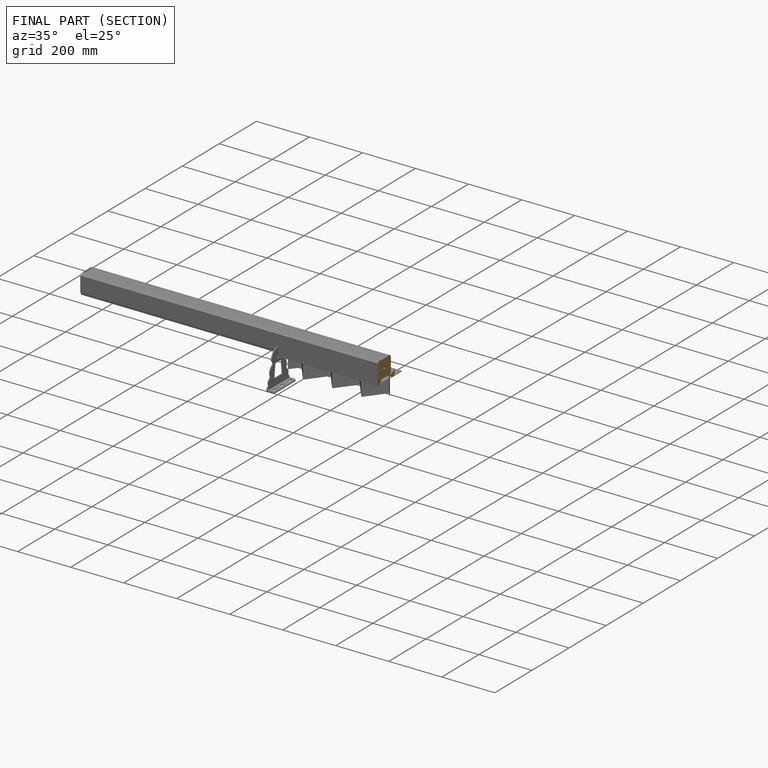
[diagram: finished part — half-section view (interior)]
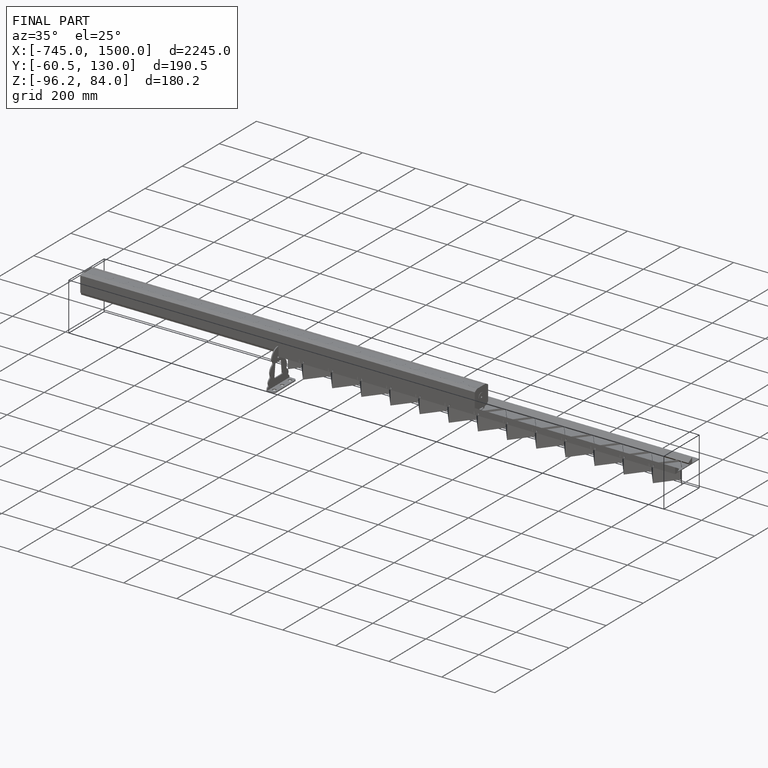
[diagram: finished part — iso view with bounding-box wireframe]
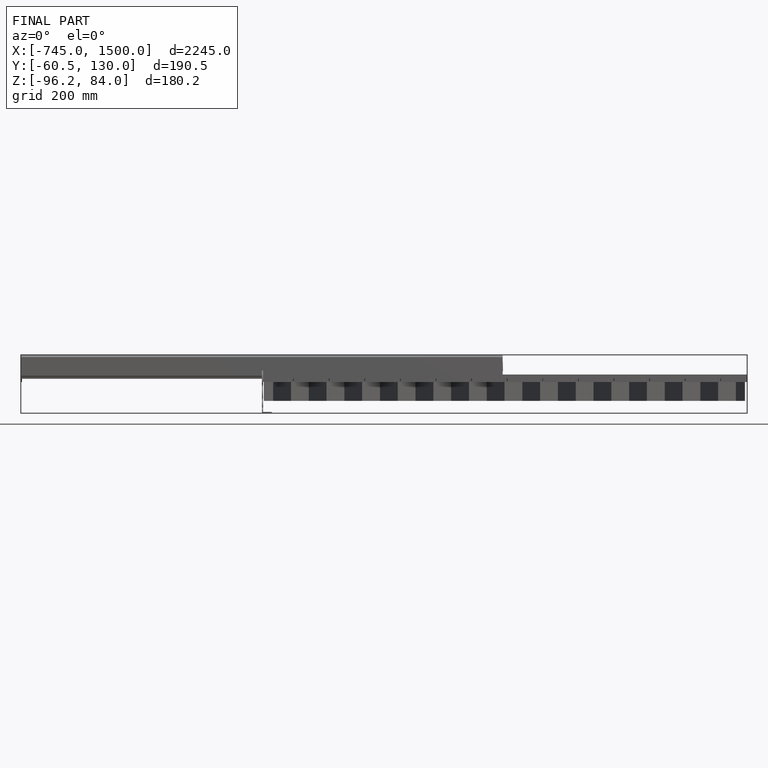
[diagram: finished part — front view with bounding-box wireframe]
